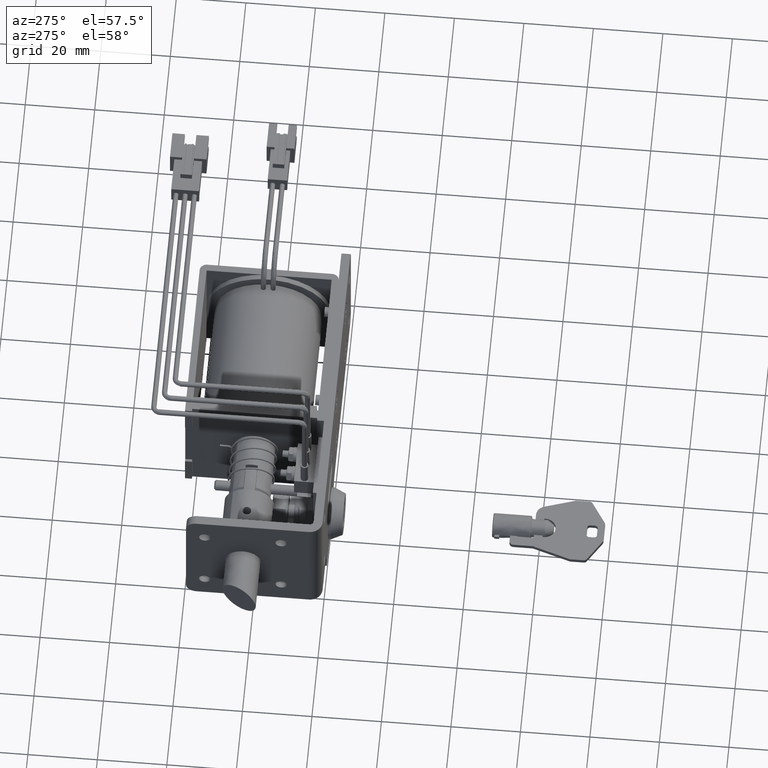
[diagram: clean part render]
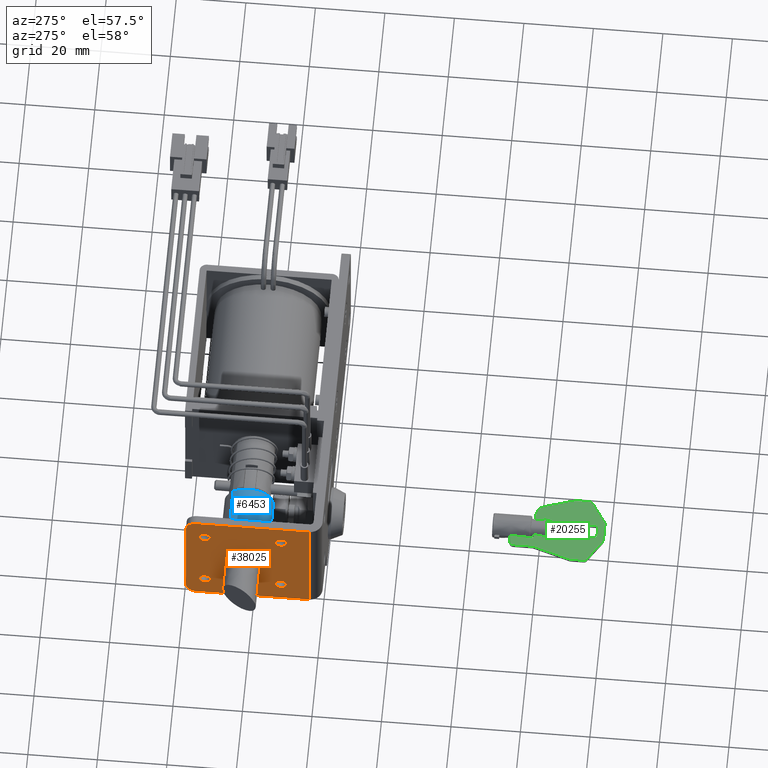
[diagram: same view with three faces highlighted in distinct colors, each labeled with its STEP entity id]
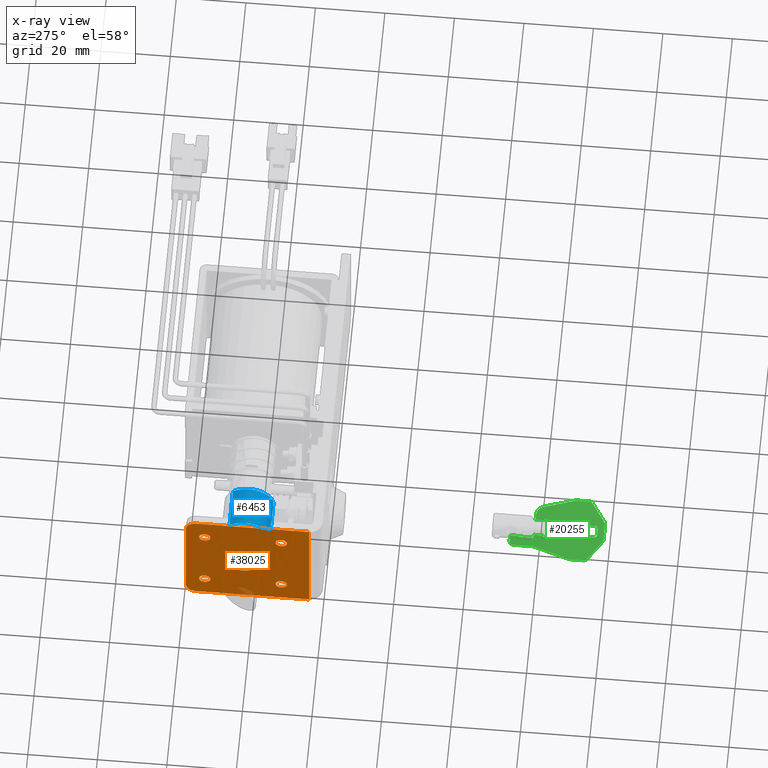
[diagram: x-ray of the same camera — body ghosted, the three highlighted faces saturated]
A machine part, auxiliary view with three faces highlighted in distinct colors.
The next image is the same camera in x-ray (body ghosted, the three faces saturated) — at least one of them is partly hidden behind the body in this view.
Their STEP definitions:

[orange] entity #38025 — the highlighted face is a freeform B-spline surface patch.
#35053=CARTESIAN_POINT('',(-28.500000000001400,13.246922417290889,5.100730091996343));
#35054=VERTEX_POINT('',#35053);
#35055=CARTESIAN_POINT('',(-28.500000000001400,11.600000000002240,3.350000000007300));
#35056=VERTEX_POINT('',#35055);
#35057=CARTESIAN_POINT('',(-28.500000000001414,13.246922417290889,5.100730091996343));
#35058=CARTESIAN_POINT('',(-28.500000000001403,13.250000000002244,5.050412060330698));
#35059=CARTESIAN_POINT('',(-28.500000000001400,13.250000000002240,5.000000000007300));
#35060=CARTESIAN_POINT('',(-28.500000000001403,13.250000000002238,3.350000000007300));
#35061=CARTESIAN_POINT('',(-28.500000000001400,11.600000000002240,3.350000000007300));
#35069=(BOUNDED_CURVE()B_SPLINE_CURVE(2,(#35057,#35058,#35059,#35060,#35061),.UNSPECIFIED.,.F.,.U.)B_SPLINE_CURVE_WITH_KNOTS((3,2,3),(0.239332962057938,0.250000000000000,0.500000000000000),.UNSPECIFIED.)CURVE()GEOMETRIC_REPRESENTATION_ITEM()RATIONAL_B_SPLINE_CURVE((0.976072041278790,0.987502787687777,1.0,0.707106781186548,1.0))REPRESENTATION_ITEM(''));
#35070=EDGE_CURVE('',#35054,#35056,#35069,.T.);
#35072=CARTESIAN_POINT('',(-28.500000000001400,9.953077582713590,4.899269908018257));
#35073=VERTEX_POINT('',#35072);
#35074=CARTESIAN_POINT('',(-28.500000000001400,11.600000000002240,3.350000000007300));
#35075=CARTESIAN_POINT('',(-28.500000000001403,10.047834991266400,3.350000000007299));
#35076=CARTESIAN_POINT('',(-28.500000000001414,9.953077582713592,4.899269908018257));
#35084=(BOUNDED_CURVE()B_SPLINE_CURVE(2,(#35074,#35075,#35076),.UNSPECIFIED.,.F.,.U.)B_SPLINE_CURVE_WITH_KNOTS((3,3),(0.500000000000000,0.739332962057938),.UNSPECIFIED.)CURVE()GEOMETRIC_REPRESENTATION_ITEM()RATIONAL_B_SPLINE_CURVE((1.0,0.719603993498771,0.976072041278790))REPRESENTATION_ITEM(''));
#35085=EDGE_CURVE('',#35056,#35073,#35084,.T.);
#35152=CARTESIAN_POINT('',(-28.500000000001400,11.600000000002240,6.650000000007299));
#35153=VERTEX_POINT('',#35152);
#35154=CARTESIAN_POINT('',(-28.500000000001400,11.600000000002240,6.650000000007299));
#35155=CARTESIAN_POINT('',(-28.500000000001403,13.152165008738075,6.650000000007299));
#35156=CARTESIAN_POINT('',(-28.500000000001414,13.246922417290889,5.100730091996343));
#35164=(BOUNDED_CURVE()B_SPLINE_CURVE(2,(#35154,#35155,#35156),.UNSPECIFIED.,.F.,.U.)B_SPLINE_CURVE_WITH_KNOTS((3,3),(0.0,0.239332962057938),.UNSPECIFIED.)CURVE()GEOMETRIC_REPRESENTATION_ITEM()RATIONAL_B_SPLINE_CURVE((1.0,0.719603993498771,0.976072041278790))REPRESENTATION_ITEM(''));
#35165=EDGE_CURVE('',#35153,#35054,#35164,.T.);
#35199=CARTESIAN_POINT('',(-28.500000000001414,9.953077582713592,4.899269908018257));
#35200=CARTESIAN_POINT('',(-28.500000000001403,9.950000000002239,4.949587939683902));
#35201=CARTESIAN_POINT('',(-28.500000000001400,9.950000000002238,5.000000000007300));
#35202=CARTESIAN_POINT('',(-28.500000000001403,9.950000000002238,6.650000000007299));
#35203=CARTESIAN_POINT('',(-28.500000000001400,11.600000000002240,6.650000000007299));
#35211=(BOUNDED_CURVE()B_SPLINE_CURVE(2,(#35199,#35200,#35201,#35202,#35203),.UNSPECIFIED.,.F.,.U.)B_SPLINE_CURVE_WITH_KNOTS((3,2,3),(0.739332962057938,0.750000000000000,1.0),.UNSPECIFIED.)CURVE()GEOMETRIC_REPRESENTATION_ITEM()RATIONAL_B_SPLINE_CURVE((0.976072041278790,0.987502787687777,1.0,0.707106781186548,1.0))REPRESENTATION_ITEM(''));
#35212=EDGE_CURVE('',#35073,#35153,#35211,.T.);
#35235=CARTESIAN_POINT('',(-28.500000000001400,13.246922417289070,27.100730091989039));
#35236=VERTEX_POINT('',#35235);
#35237=CARTESIAN_POINT('',(-28.500000000001400,11.600000000000421,25.350000000000001));
#35238=VERTEX_POINT('',#35237);
#35239=CARTESIAN_POINT('',(-28.500000000001410,13.246922417289063,27.100730091989039));
#35240=CARTESIAN_POINT('',(-28.500000000001400,13.250000000000419,27.050412060323396));
#35241=CARTESIAN_POINT('',(-28.500000000001400,13.250000000000419,27.0));
#35242=CARTESIAN_POINT('',(-28.500000000001403,13.250000000000417,25.350000000000001));
#35243=CARTESIAN_POINT('',(-28.500000000001400,11.600000000000421,25.350000000000001));
#35251=(BOUNDED_CURVE()B_SPLINE_CURVE(2,(#35239,#35240,#35241,#35242,#35243),.UNSPECIFIED.,.F.,.U.)B_SPLINE_CURVE_WITH_KNOTS((3,2,3),(0.239332962057938,0.250000000000000,0.500000000000000),.UNSPECIFIED.)CURVE()GEOMETRIC_REPRESENTATION_ITEM()RATIONAL_B_SPLINE_CURVE((0.976072041278790,0.987502787687777,1.0,0.707106781186548,1.0))REPRESENTATION_ITEM(''));
#35252=EDGE_CURVE('',#35236,#35238,#35251,.T.);
#35254=CARTESIAN_POINT('',(-28.500000000001400,9.953077582711773,26.899269908010961));
#35255=VERTEX_POINT('',#35254);
#35256=CARTESIAN_POINT('',(-28.500000000001400,11.600000000000421,25.350000000000001));
#35257=CARTESIAN_POINT('',(-28.500000000001410,10.047834991264581,25.349999999999991));
#35258=CARTESIAN_POINT('',(-28.500000000001396,9.953077582711773,26.899269908010961));
#35266=(BOUNDED_CURVE()B_SPLINE_CURVE(2,(#35256,#35257,#35258),.UNSPECIFIED.,.F.,.U.)B_SPLINE_CURVE_WITH_KNOTS((3,3),(0.500000000000000,0.739332962057938),.UNSPECIFIED.)CURVE()GEOMETRIC_REPRESENTATION_ITEM()RATIONAL_B_SPLINE_CURVE((1.0,0.719603993498771,0.976072041278790))REPRESENTATION_ITEM(''));
#35267=EDGE_CURVE('',#35238,#35255,#35266,.T.);
#35334=CARTESIAN_POINT('',(-28.500000000001400,11.600000000000421,28.649999999999999));
#35335=VERTEX_POINT('',#35334);
#35336=CARTESIAN_POINT('',(-28.500000000001400,11.600000000000421,28.649999999999999));
#35337=CARTESIAN_POINT('',(-28.500000000001407,13.152165008736258,28.649999999999991));
#35338=CARTESIAN_POINT('',(-28.500000000001410,13.246922417289067,27.100730091989043));
#35346=(BOUNDED_CURVE()B_SPLINE_CURVE(2,(#35336,#35337,#35338),.UNSPECIFIED.,.F.,.U.)B_SPLINE_CURVE_WITH_KNOTS((3,3),(0.0,0.239332962057938),.UNSPECIFIED.)CURVE()GEOMETRIC_REPRESENTATION_ITEM()RATIONAL_B_SPLINE_CURVE((1.0,0.719603993498770,0.976072041278791))REPRESENTATION_ITEM(''));
#35347=EDGE_CURVE('',#35335,#35236,#35346,.T.);
#35381=CARTESIAN_POINT('',(-28.500000000001396,9.953077582711773,26.899269908010961));
#35382=CARTESIAN_POINT('',(-28.500000000001407,9.950000000000419,26.949587939676608));
#35383=CARTESIAN_POINT('',(-28.500000000001400,9.950000000000419,27.0));
#35384=CARTESIAN_POINT('',(-28.500000000001403,9.950000000000419,28.649999999999988));
#35385=CARTESIAN_POINT('',(-28.500000000001400,11.600000000000421,28.649999999999999));
#35393=(BOUNDED_CURVE()B_SPLINE_CURVE(2,(#35381,#35382,#35383,#35384,#35385),.UNSPECIFIED.,.F.,.U.)B_SPLINE_CURVE_WITH_KNOTS((3,2,3),(0.739332962057938,0.750000000000000,1.0),.UNSPECIFIED.)CURVE()GEOMETRIC_REPRESENTATION_ITEM()RATIONAL_B_SPLINE_CURVE((0.976072041278790,0.987502787687777,1.0,0.707106781186548,1.0))REPRESENTATION_ITEM(''));
#35394=EDGE_CURVE('',#35255,#35335,#35393,.T.);
#35417=CARTESIAN_POINT('',(-28.500000000001400,35.246922417289042,5.100730091989043));
#35418=VERTEX_POINT('',#35417);
#35419=CARTESIAN_POINT('',(-28.500000000001400,33.600000000000399,3.350000000000000));
#35420=VERTEX_POINT('',#35419);
#35421=CARTESIAN_POINT('',(-28.500000000001410,35.246922417289049,5.100730091989044));
#35422=CARTESIAN_POINT('',(-28.500000000001400,35.250000000000391,5.050412060323399));
#35423=CARTESIAN_POINT('',(-28.500000000001400,35.250000000000398,5.0));
#35424=CARTESIAN_POINT('',(-28.500000000001403,35.250000000000391,3.350000000000000));
#35425=CARTESIAN_POINT('',(-28.500000000001400,33.600000000000399,3.350000000000000));
#35433=(BOUNDED_CURVE()B_SPLINE_CURVE(2,(#35421,#35422,#35423,#35424,#35425),.UNSPECIFIED.,.F.,.U.)B_SPLINE_CURVE_WITH_KNOTS((3,2,3),(0.239332962057938,0.250000000000000,0.500000000000000),.UNSPECIFIED.)CURVE()GEOMETRIC_REPRESENTATION_ITEM()RATIONAL_B_SPLINE_CURVE((0.976072041278790,0.987502787687777,1.0,0.707106781186548,1.0))REPRESENTATION_ITEM(''));
#35434=EDGE_CURVE('',#35418,#35420,#35433,.T.);
#35436=CARTESIAN_POINT('',(-28.500000000001400,31.953077582711760,4.899269908010957));
#35437=VERTEX_POINT('',#35436);
#35438=CARTESIAN_POINT('',(-28.500000000001400,33.600000000000399,3.350000000000000));
#35439=CARTESIAN_POINT('',(-28.500000000001403,32.047834991264565,3.349999999999999));
#35440=CARTESIAN_POINT('',(-28.500000000001414,31.953077582711764,4.899269908010957));
#35448=(BOUNDED_CURVE()B_SPLINE_CURVE(2,(#35438,#35439,#35440),.UNSPECIFIED.,.F.,.U.)B_SPLINE_CURVE_WITH_KNOTS((3,3),(0.500000000000000,0.739332962057938),.UNSPECIFIED.)CURVE()GEOMETRIC_REPRESENTATION_ITEM()RATIONAL_B_SPLINE_CURVE((1.0,0.719603993498771,0.976072041278790))REPRESENTATION_ITEM(''));
#35449=EDGE_CURVE('',#35420,#35437,#35448,.T.);
#35516=CARTESIAN_POINT('',(-28.500000000001400,33.600000000000399,6.650000000000000));
#35517=VERTEX_POINT('',#35516);
#35518=CARTESIAN_POINT('',(-28.500000000001400,33.600000000000399,6.650000000000000));
#35519=CARTESIAN_POINT('',(-28.500000000001407,35.152165008736240,6.649999999999999));
#35520=CARTESIAN_POINT('',(-28.500000000001410,35.246922417289056,5.100730091989043));
#35528=(BOUNDED_CURVE()B_SPLINE_CURVE(2,(#35518,#35519,#35520),.UNSPECIFIED.,.F.,.U.)B_SPLINE_CURVE_WITH_KNOTS((3,3),(0.0,0.239332962057938),.UNSPECIFIED.)CURVE()GEOMETRIC_REPRESENTATION_ITEM()RATIONAL_B_SPLINE_CURVE((1.0,0.719603993498770,0.976072041278790))REPRESENTATION_ITEM(''));
#35529=EDGE_CURVE('',#35517,#35418,#35528,.T.);
#35563=CARTESIAN_POINT('',(-28.500000000001414,31.953077582711764,4.899269908010957));
#35564=CARTESIAN_POINT('',(-28.500000000001403,31.950000000000401,4.949587939676601));
#35565=CARTESIAN_POINT('',(-28.500000000001400,31.950000000000401,5.0));
#35566=CARTESIAN_POINT('',(-28.500000000001403,31.950000000000404,6.649999999999999));
#35567=CARTESIAN_POINT('',(-28.500000000001400,33.600000000000399,6.650000000000000));
#35575=(BOUNDED_CURVE()B_SPLINE_CURVE(2,(#35563,#35564,#35565,#35566,#35567),.UNSPECIFIED.,.F.,.U.)B_SPLINE_CURVE_WITH_KNOTS((3,2,3),(0.739332962057938,0.750000000000000,1.0),.UNSPECIFIED.)CURVE()GEOMETRIC_REPRESENTATION_ITEM()RATIONAL_B_SPLINE_CURVE((0.976072041278790,0.987502787687777,1.0,0.707106781186548,1.0))REPRESENTATION_ITEM(''));
#35576=EDGE_CURVE('',#35437,#35517,#35575,.T.);
#35600=CARTESIAN_POINT('',(-28.500000000001400,18.500328793608389,12.966405432578540));
#35601=VERTEX_POINT('',#35600);
#35607=CARTESIAN_POINT('',(-28.500000000001400,22.599999999999500,21.099999999999099));
#35608=VERTEX_POINT('',#35607);
#35609=CARTESIAN_POINT('',(-28.500000000001407,18.500328793608389,12.966405432578544));
#35610=CARTESIAN_POINT('',(-28.500000000001407,17.499999999999503,14.318273344040199));
#35611=CARTESIAN_POINT('',(-28.500000000001400,17.499999999999499,15.999999999999099));
#35612=CARTESIAN_POINT('',(-28.500000000001403,17.499999999999503,21.099999999999103));
#35613=CARTESIAN_POINT('',(-28.500000000001400,22.599999999999500,21.099999999999099));
#35621=(BOUNDED_CURVE()B_SPLINE_CURVE(2,(#35609,#35610,#35611,#35612,#35613),.UNSPECIFIED.,.F.,.U.)B_SPLINE_CURVE_WITH_KNOTS((3,2,3),(0.647425943168841,0.750000000000000,1.0),.UNSPECIFIED.)CURVE()GEOMETRIC_REPRESENTATION_ITEM()RATIONAL_B_SPLINE_CURVE((0.858267077470319,0.879827017311871,1.0,0.707106781186548,1.0))REPRESENTATION_ITEM(''));
#35622=EDGE_CURVE('',#35601,#35608,#35621,.T.);
#35624=CARTESIAN_POINT('',(-28.500000000001670,26.699671189019352,19.033594590895600));
#35625=VERTEX_POINT('',#35624);
#35626=CARTESIAN_POINT('',(-28.500000000001400,22.599999999999500,21.099999999999099));
#35627=CARTESIAN_POINT('',(-28.500000000001403,25.170612885894236,21.099999999999092));
#35628=CARTESIAN_POINT('',(-28.500000000001403,26.699671189019671,19.033594590895831));
#35636=(BOUNDED_CURVE()B_SPLINE_CURVE(2,(#35626,#35627,#35628),.UNSPECIFIED.,.F.,.U.)B_SPLINE_CURVE_WITH_KNOTS((3,3),(0.0,0.147425942300038),.UNSPECIFIED.)CURVE()GEOMETRIC_REPRESENTATION_ITEM()RATIONAL_B_SPLINE_CURVE((1.0,0.827279764892543,0.858267077105093))REPRESENTATION_ITEM(''));
#35637=EDGE_CURVE('',#35608,#35625,#35636,.T.);
#35724=CARTESIAN_POINT('',(-28.500000000001400,22.599999999999500,10.899999999999100));
#35725=VERTEX_POINT('',#35724);
#35726=CARTESIAN_POINT('',(-28.500000000001673,26.699671189019345,19.033594590895607));
#35727=CARTESIAN_POINT('',(-28.500000000001407,27.699999999999491,17.681726672147818));
#35728=CARTESIAN_POINT('',(-28.500000000001400,27.699999999999498,15.999999999999099));
#35729=CARTESIAN_POINT('',(-28.500000000001403,27.699999999999495,10.899999999999098));
#35730=CARTESIAN_POINT('',(-28.500000000001400,22.599999999999500,10.899999999999100));
#35738=(BOUNDED_CURVE()B_SPLINE_CURVE(2,(#35726,#35727,#35728,#35729,#35730),.UNSPECIFIED.,.F.,.U.)B_SPLINE_CURVE_WITH_KNOTS((3,2,3),(0.147425942300038,0.250000000000000,0.500000000000000),.UNSPECIFIED.)CURVE()GEOMETRIC_REPRESENTATION_ITEM()RATIONAL_B_SPLINE_CURVE((0.858267077105093,0.879827016294005,1.0,0.707106781186548,1.0))REPRESENTATION_ITEM(''));
#35739=EDGE_CURVE('',#35625,#35725,#35738,.T.);
#35741=CARTESIAN_POINT('',(-28.500000000001400,22.599999999999500,10.899999999999100));
#35742=CARTESIAN_POINT('',(-28.500000000001407,20.029387095792934,10.899999999999100));
#35743=CARTESIAN_POINT('',(-28.500000000001393,18.500328793608062,12.966405432578298));
#35751=(BOUNDED_CURVE()B_SPLINE_CURVE(2,(#35741,#35742,#35743),.UNSPECIFIED.,.F.,.U.)B_SPLINE_CURVE_WITH_KNOTS((3,3),(0.500000000000000,0.647425943168841),.UNSPECIFIED.)CURVE()GEOMETRIC_REPRESENTATION_ITEM()RATIONAL_B_SPLINE_CURVE((1.0,0.827279763874676,0.858267077470319))REPRESENTATION_ITEM(''));
#35752=EDGE_CURVE('',#35725,#35601,#35751,.T.);
#35776=CARTESIAN_POINT('',(-28.500000000001400,35.246922417289042,27.100730091989039));
#35777=VERTEX_POINT('',#35776);
#35778=CARTESIAN_POINT('',(-28.500000000001400,33.600000000000399,25.350000000000001));
#35779=VERTEX_POINT('',#35778);
#35780=CARTESIAN_POINT('',(-28.500000000001410,35.246922417289035,27.100730091989043));
#35781=CARTESIAN_POINT('',(-28.500000000001410,35.250000000000398,27.050412060323399));
#35782=CARTESIAN_POINT('',(-28.500000000001400,35.250000000000398,27.0));
#35783=CARTESIAN_POINT('',(-28.500000000001403,35.250000000000391,25.350000000000001));
#35784=CARTESIAN_POINT('',(-28.500000000001400,33.600000000000399,25.350000000000001));
#35792=(BOUNDED_CURVE()B_SPLINE_CURVE(2,(#35780,#35781,#35782,#35783,#35784),.UNSPECIFIED.,.F.,.U.)B_SPLINE_CURVE_WITH_KNOTS((3,2,3),(0.239332962057938,0.250000000000000,0.500000000000000),.UNSPECIFIED.)CURVE()GEOMETRIC_REPRESENTATION_ITEM()RATIONAL_B_SPLINE_CURVE((0.976072041278791,0.987502787687777,1.0,0.707106781186548,1.0))REPRESENTATION_ITEM(''));
#35793=EDGE_CURVE('',#35777,#35779,#35792,.T.);
#35795=CARTESIAN_POINT('',(-28.500000000001400,31.953077582711760,26.899269908010961));
#35796=VERTEX_POINT('',#35795);
#35797=CARTESIAN_POINT('',(-28.500000000001400,33.600000000000399,25.350000000000001));
#35798=CARTESIAN_POINT('',(-28.500000000001410,32.047834991264558,25.349999999999991));
#35799=CARTESIAN_POINT('',(-28.500000000001396,31.953077582711757,26.899269908010961));
#35807=(BOUNDED_CURVE()B_SPLINE_CURVE(2,(#35797,#35798,#35799),.UNSPECIFIED.,.F.,.U.)B_SPLINE_CURVE_WITH_KNOTS((3,3),(0.500000000000000,0.739332962057938),.UNSPECIFIED.)CURVE()GEOMETRIC_REPRESENTATION_ITEM()RATIONAL_B_SPLINE_CURVE((1.0,0.719603993498771,0.976072041278790))REPRESENTATION_ITEM(''));
#35808=EDGE_CURVE('',#35779,#35796,#35807,.T.);
#35875=CARTESIAN_POINT('',(-28.500000000001400,33.600000000000399,28.649999999999999));
#35876=VERTEX_POINT('',#35875);
#35877=CARTESIAN_POINT('',(-28.500000000001400,33.600000000000399,28.649999999999999));
#35878=CARTESIAN_POINT('',(-28.500000000001414,35.152165008736233,28.649999999999991));
#35879=CARTESIAN_POINT('',(-28.500000000001403,35.246922417289035,27.100730091989043));
#35887=(BOUNDED_CURVE()B_SPLINE_CURVE(2,(#35877,#35878,#35879),.UNSPECIFIED.,.F.,.U.)B_SPLINE_CURVE_WITH_KNOTS((3,3),(0.0,0.239332962057938),.UNSPECIFIED.)CURVE()GEOMETRIC_REPRESENTATION_ITEM()RATIONAL_B_SPLINE_CURVE((1.0,0.719603993498771,0.976072041278790))REPRESENTATION_ITEM(''));
#35888=EDGE_CURVE('',#35876,#35777,#35887,.T.);
#35922=CARTESIAN_POINT('',(-28.500000000001396,31.953077582711757,26.899269908010961));
#35923=CARTESIAN_POINT('',(-28.500000000001407,31.950000000000404,26.949587939676608));
#35924=CARTESIAN_POINT('',(-28.500000000001400,31.950000000000401,27.0));
#35925=CARTESIAN_POINT('',(-28.500000000001403,31.950000000000404,28.649999999999988));
#35926=CARTESIAN_POINT('',(-28.500000000001400,33.600000000000399,28.649999999999999));
#35934=(BOUNDED_CURVE()B_SPLINE_CURVE(2,(#35922,#35923,#35924,#35925,#35926),.UNSPECIFIED.,.F.,.U.)B_SPLINE_CURVE_WITH_KNOTS((3,2,3),(0.739332962057938,0.750000000000000,1.0),.UNSPECIFIED.)CURVE()GEOMETRIC_REPRESENTATION_ITEM()RATIONAL_B_SPLINE_CURVE((0.976072041278790,0.987502787687777,1.0,0.707106781186548,1.0))REPRESENTATION_ITEM(''));
#35935=EDGE_CURVE('',#35796,#35876,#35934,.T.);
#37690=CARTESIAN_POINT('',(-28.500000000000000,3.600000000000050,-2.0));
#37691=VERTEX_POINT('',#37690);
#37706=CARTESIAN_POINT('',(-28.500000000000000,3.600000000000050,34.0));
#37707=VERTEX_POINT('',#37706);
#37721=CARTESIAN_POINT('',(-28.500000000000000,3.600000000000050,-2.0));
#37722=CARTESIAN_POINT('',(-28.500000000000000,3.600000000000050,34.0));
#37723=QUASI_UNIFORM_CURVE('',1,(#37721,#37722),.UNSPECIFIED.,.F.,.U.);
#37724=EDGE_CURVE('',#37691,#37707,#37723,.T.);
#37813=CARTESIAN_POINT('',(-28.500000000001400,39.0,31.0));
#37814=VERTEX_POINT('',#37813);
#37820=CARTESIAN_POINT('',(-28.500000000000000,36.0,34.0));
#37821=VERTEX_POINT('',#37820);
#37822=CARTESIAN_POINT('',(-28.500000000000000,36.0,34.0));
#37823=CARTESIAN_POINT('',(-28.500000000000007,39.000000000000007,34.000000000000007));
#37824=CARTESIAN_POINT('',(-28.500000000000000,39.0,31.0));
#37832=(BOUNDED_CURVE()B_SPLINE_CURVE(2,(#37822,#37823,#37824),.UNSPECIFIED.,.F.,.U.)CURVE()GEOMETRIC_REPRESENTATION_ITEM()QUASI_UNIFORM_CURVE()RATIONAL_B_SPLINE_CURVE((1.0,0.707106781186548,1.0))REPRESENTATION_ITEM(''));
#37833=EDGE_CURVE('',#37821,#37814,#37832,.T.);
#37899=CARTESIAN_POINT('',(-28.500000000000000,36.0,-2.0));
#37900=VERTEX_POINT('',#37899);
#37906=CARTESIAN_POINT('',(-28.500000000001400,39.0,1.0));
#37907=VERTEX_POINT('',#37906);
#37908=CARTESIAN_POINT('',(-28.500000000001400,39.0,1.0));
#37909=CARTESIAN_POINT('',(-28.500000000000007,39.000000000000007,-2.000000000000000));
#37910=CARTESIAN_POINT('',(-28.500000000000000,36.0,-2.0));
#37918=(BOUNDED_CURVE()B_SPLINE_CURVE(2,(#37908,#37909,#37910),.UNSPECIFIED.,.F.,.U.)CURVE()GEOMETRIC_REPRESENTATION_ITEM()QUASI_UNIFORM_CURVE()RATIONAL_B_SPLINE_CURVE((1.0,0.707106781186548,1.0))REPRESENTATION_ITEM(''));
#37919=EDGE_CURVE('',#37907,#37900,#37918,.T.);
#37965=CARTESIAN_POINT('',(-28.500000000001400,39.0,1.0));
#37966=CARTESIAN_POINT('',(-28.500000000001400,39.0,31.0));
#37967=QUASI_UNIFORM_CURVE('',1,(#37965,#37966),.UNSPECIFIED.,.F.,.U.);
#37968=EDGE_CURVE('',#37907,#37814,#37967,.T.);
#37974=CARTESIAN_POINT('',(-28.500000000000000,1.831770068612118,35.798199930225010));
#37975=CARTESIAN_POINT('',(-28.500000000000000,1.831770068612118,-3.798200895820258));
#37976=CARTESIAN_POINT('',(-28.500000000000000,40.768230880889917,35.798199930225010));
#37977=CARTESIAN_POINT('',(-28.500000000000000,40.768230880889917,-3.798200895820258));
#37978=B_SPLINE_SURFACE_WITH_KNOTS('',1,1,((#37974,#37976),(#37975,#37977)),.UNSPECIFIED.,.F.,.F.,.U.,(2,2),(2,2),(0.0,39.596400826045269),(0.0,38.936460812277801),.UNSPECIFIED.);
#37979=CARTESIAN_POINT('',(-28.500000000000000,36.0,-2.0));
#37980=CARTESIAN_POINT('',(-28.500000000000000,3.600000000000050,-2.0));
#37981=QUASI_UNIFORM_CURVE('',1,(#37979,#37980),.UNSPECIFIED.,.F.,.U.);
#37982=EDGE_CURVE('',#37900,#37691,#37981,.T.);
#37983=ORIENTED_EDGE('',*,*,#37982,.T.);
#37984=ORIENTED_EDGE('',*,*,#37724,.T.);
#37985=CARTESIAN_POINT('',(-28.500000000000000,36.0,34.0));
#37986=CARTESIAN_POINT('',(-28.500000000000000,3.600000000000050,34.0));
#37987=QUASI_UNIFORM_CURVE('',1,(#37985,#37986),.UNSPECIFIED.,.F.,.U.);
#37988=EDGE_CURVE('',#37821,#37707,#37987,.T.);
#37989=ORIENTED_EDGE('',*,*,#37988,.F.);
#37990=ORIENTED_EDGE('',*,*,#37833,.T.);
#37991=ORIENTED_EDGE('',*,*,#37968,.F.);
#37992=ORIENTED_EDGE('',*,*,#37919,.T.);
#37993=EDGE_LOOP('',(#37983,#37984,#37989,#37990,#37991,#37992));
#37994=FACE_OUTER_BOUND('',#37993,.T.);
#37995=ORIENTED_EDGE('',*,*,#35808,.F.);
#37996=ORIENTED_EDGE('',*,*,#35793,.F.);
#37997=ORIENTED_EDGE('',*,*,#35888,.F.);
#37998=ORIENTED_EDGE('',*,*,#35935,.F.);
#37999=EDGE_LOOP('',(#37995,#37996,#37997,#37998));
#38000=FACE_BOUND('',#37999,.T.);
#38001=ORIENTED_EDGE('',*,*,#35637,.F.);
#38002=ORIENTED_EDGE('',*,*,#35622,.F.);
#38003=ORIENTED_EDGE('',*,*,#35752,.F.);
#38004=ORIENTED_EDGE('',*,*,#35739,.F.);
#38005=EDGE_LOOP('',(#38001,#38002,#38003,#38004));
#38006=FACE_BOUND('',#38005,.T.);
#38007=ORIENTED_EDGE('',*,*,#35449,.F.);
#38008=ORIENTED_EDGE('',*,*,#35434,.F.);
#38009=ORIENTED_EDGE('',*,*,#35529,.F.);
#38010=ORIENTED_EDGE('',*,*,#35576,.F.);
#38011=EDGE_LOOP('',(#38007,#38008,#38009,#38010));
#38012=FACE_BOUND('',#38011,.T.);
#38013=ORIENTED_EDGE('',*,*,#35267,.F.);
#38014=ORIENTED_EDGE('',*,*,#35252,.F.);
#38015=ORIENTED_EDGE('',*,*,#35347,.F.);
#38016=ORIENTED_EDGE('',*,*,#35394,.F.);
#38017=EDGE_LOOP('',(#38013,#38014,#38015,#38016));
#38018=FACE_BOUND('',#38017,.T.);
#38019=ORIENTED_EDGE('',*,*,#35085,.F.);
#38020=ORIENTED_EDGE('',*,*,#35070,.F.);
#38021=ORIENTED_EDGE('',*,*,#35165,.F.);
#38022=ORIENTED_EDGE('',*,*,#35212,.F.);
#38023=EDGE_LOOP('',(#38019,#38020,#38021,#38022));
#38024=FACE_BOUND('',#38023,.T.);
#38025=ADVANCED_FACE('',(#37994,#38000,#38006,#38012,#38018,#38024),#37978,.F.);

[blue] entity #6453 — the highlighted face is a freeform B-spline surface patch.
#5358=CARTESIAN_POINT('',(-8.499999999999755,17.961663952520080,10.757306158983759));
#5359=VERTEX_POINT('',#5358);
#5360=CARTESIAN_POINT('',(-8.499999999999600,22.600000000000001,22.999999999998650));
#5361=VERTEX_POINT('',#5360);
#5362=CARTESIAN_POINT('',(-8.499999999999755,17.961663952520073,10.757306158983756));
#5363=CARTESIAN_POINT('',(-8.499999999999741,15.600000000001423,12.846726478992236));
#5364=CARTESIAN_POINT('',(-8.499999999999707,15.600000000001071,15.999999999999860));
#5365=CARTESIAN_POINT('',(-8.499999999999632,15.600000000000298,22.999999999998980));
#5366=CARTESIAN_POINT('',(-8.499999999999600,22.600000000000001,22.999999999998650));
#5374=(BOUNDED_CURVE()B_SPLINE_CURVE(2,(#5362,#5363,#5364,#5365,#5366),.UNSPECIFIED.,.F.,.U.)B_SPLINE_CURVE_WITH_KNOTS((3,2,3),(0.615779764474283,0.750000000000000,1.0),.UNSPECIFIED.)CURVE()GEOMETRIC_REPRESENTATION_ITEM()RATIONAL_B_SPLINE_CURVE((0.854350179584675,0.842751212747892,1.0,0.707106781186547,1.0))REPRESENTATION_ITEM(''));
#5375=EDGE_CURVE('',#5359,#5361,#5374,.T.);
#5392=CARTESIAN_POINT('',(-8.499999999999757,27.238336047479919,21.242693841013541));
#5393=VERTEX_POINT('',#5392);
#5409=CARTESIAN_POINT('',(-8.499999999999600,22.600000000000001,22.999999999998650));
#5410=CARTESIAN_POINT('',(-8.499999999999680,25.252059485763031,22.999999999997776));
#5411=CARTESIAN_POINT('',(-8.499999999999757,27.238336047479923,21.242693841013541));
#5419=(BOUNDED_CURVE()B_SPLINE_CURVE(2,(#5409,#5410,#5411),.UNSPECIFIED.,.F.,.U.)B_SPLINE_CURVE_WITH_KNOTS((3,3),(0.0,0.115779764474283),.UNSPECIFIED.)CURVE()GEOMETRIC_REPRESENTATION_ITEM()RATIONAL_B_SPLINE_CURVE((1.0,0.864355568438656,0.854350179584675))REPRESENTATION_ITEM(''));
#5420=EDGE_CURVE('',#5361,#5393,#5419,.T.);
#5678=CARTESIAN_POINT('',(-14.971723449471501,15.662886402356261,15.063806094038339));
#5679=VERTEX_POINT('',#5678);
#5685=CARTESIAN_POINT('',(-15.799503567931490,15.712511325131290,17.249999901420729));
#5686=VERTEX_POINT('',#5685);
#5687=CARTESIAN_POINT('',(-14.971723449471501,15.662886402356261,15.063806094038339));
#5688=CARTESIAN_POINT('',(-14.952571054250811,15.660599700125029,15.080750236249960));
#5689=CARTESIAN_POINT('',(-14.934005454124920,15.658304760737760,15.098224064156440));
#5690=CARTESIAN_POINT('',(-14.858494841095380,15.648692092579200,15.173752059856669));
#5691=CARTESIAN_POINT('',(-14.806811237070299,15.641416307257360,15.236569348110841));
#5692=CARTESIAN_POINT('',(-14.738270529327560,15.631193533679321,15.339002733887639));
#5693=CARTESIAN_POINT('',(-14.717044674413250,15.627917468528359,15.374400359176651));
#5694=CARTESIAN_POINT('',(-14.678516517743381,15.621829200806539,15.446427973270611));
#5695=CARTESIAN_POINT('',(-14.643674149921861,15.616169304316470,15.520032139823581));
#5696=CARTESIAN_POINT('',(-14.616118358292111,15.611513621924351,15.596763802150489));
#5697=CARTESIAN_POINT('',(-14.592270836374050,15.607434253039390,15.675091560884090));
#5698=CARTESIAN_POINT('',(-14.582160882921750,15.605675634211190,15.715288667523319));
#5699=CARTESIAN_POINT('',(-14.558027925795219,15.601446758623300,15.836359304345899));
#5700=CARTESIAN_POINT('',(-14.550047828795400,15.600008284823771,15.917572470361261));
#5701=CARTESIAN_POINT('',(-14.549976716581339,15.599995603566480,16.040126334314291));
#5702=CARTESIAN_POINT('',(-14.551950384063881,15.600348914758101,16.081100824256961));
#5703=CARTESIAN_POINT('',(-14.560025423278830,15.601784209560360,16.163304302075900));
#5704=CARTESIAN_POINT('',(-14.566097392556420,15.602860816108530,16.204099612645940));
#5705=CARTESIAN_POINT('',(-14.590068046773469,15.607061380904501,16.324430388603080));
#5706=CARTESIAN_POINT('',(-14.613713716110110,15.611164598731060,16.402430664594831));
#5707=CARTESIAN_POINT('',(-14.660775304931340,15.618947369856690,16.516089503341689));
#5708=CARTESIAN_POINT('',(-14.678501245237831,15.621827059820911,16.553550590661231));
#5709=CARTESIAN_POINT('',(-14.717147424661860,15.627933760681000,16.625785948586170));
#5710=CARTESIAN_POINT('',(-14.759100602340380,15.634407428173249,16.695687727331549));
#5711=CARTESIAN_POINT('',(-14.807534185886951,15.641420070982189,16.761034807183300));
#5712=CARTESIAN_POINT('',(-14.859238224552421,15.648605982600030,16.824093246158871));
#5713=CARTESIAN_POINT('',(-14.886819535854331,15.652297613746390,16.854571657520641));
#5714=CARTESIAN_POINT('',(-14.974037257137390,15.663402162652201,16.941833700964199));
#5715=CARTESIAN_POINT('',(-15.036972728127781,15.670700724233670,16.993431909280272));
#5716=CARTESIAN_POINT('',(-15.138367466711090,15.680886789770961,17.061318434706489));
#5717=CARTESIAN_POINT('',(-15.173339594834941,15.684155555693980,17.082350221354972));
#5718=CARTESIAN_POINT('',(-15.245704540791740,15.690336879124979,17.121134162722282));
#5719=CARTESIAN_POINT('',(-15.283105423524040,15.693245361582321,17.138856316728511));
#5720=CARTESIAN_POINT('',(-15.396463764254470,15.701111813220839,17.185897641328580));
#5721=CARTESIAN_POINT('',(-15.474373118932821,15.705284665066220,17.209614437827181));
#5722=CARTESIAN_POINT('',(-15.594764015623440,15.709570871913391,17.233715199652689));
#5723=CARTESIAN_POINT('',(-15.635698214013480,15.710674002234200,17.239840516714668));
#5724=CARTESIAN_POINT('',(-15.717747817571579,15.712142351855780,17.247972016002230));
#5725=CARTESIAN_POINT('',(-15.758673742826240,15.712508380369920,17.249983687911730));
#5726=CARTESIAN_POINT('',(-15.799503567931490,15.712511325131290,17.249999901420729));
#5727=B_SPLINE_CURVE_WITH_KNOTS('',3,(#5687,#5688,#5689,#5690,#5691,#5692,#5693,#5694,#5695,#5696,#5697,#5698,#5699,#5700,#5701,#5702,#5703,#5704,#5705,#5706,#5707,#5708,#5709,#5710,#5711,#5712,#5713,#5714,#5715,#5716,#5717,#5718,#5719,#5720,#5721,#5722,#5723,#5724,#5725,#5726),.UNSPECIFIED.,.F.,.U.,(4,2,2,2,1,2,2,2,2,2,2,2,1,2,2,2,2,2,2,2,4),(0.115226034232152,0.124999999999992,0.156249999999989,0.171874999999988,0.187499999999987,0.203124999999985,0.218749999999984,0.249999999999981,0.265624999999981,0.281249999999980,0.312499999999980,0.328124999999980,0.343749999999979,0.359374999999979,0.374999999999979,0.406249999999979,0.421874999999979,0.437499999999979,0.468749999999979,0.484374999999979,0.499999999999979),.UNSPECIFIED.);
#5728=EDGE_CURVE('',#5679,#5686,#5727,.T.);
#5730=CARTESIAN_POINT('',(-16.628277603529959,15.662884701529450,16.936199571381412));
#5731=VERTEX_POINT('',#5730);
#5732=CARTESIAN_POINT('',(-15.799503567931490,15.712511325131290,17.249999901420729));
#5733=CARTESIAN_POINT('',(-15.881162902672621,15.712517008702900,17.250031998769519));
#5734=CARTESIAN_POINT('',(-15.962440506494501,15.711069859823340,17.242139822658249));
#5735=CARTESIAN_POINT('',(-16.083768334086670,15.706785823836659,17.218060737578931));
#5736=CARTESIAN_POINT('',(-16.123850708792300,15.705011650332500,17.208010444284739));
#5737=CARTESIAN_POINT('',(-16.202123795323519,15.700891935256641,17.184256604035799));
#5738=CARTESIAN_POINT('',(-16.278872740338048,15.696188534113469,17.156780166662429));
#5739=CARTESIAN_POINT('',(-16.352621002541230,15.690469015084361,17.121952736146589));
#5740=CARTESIAN_POINT('',(-16.424849329555570,15.684317176433311,17.083388149113279));
#5741=CARTESIAN_POINT('',(-16.460367170197909,15.681006933430410,17.062112710615249));
#5742=CARTESIAN_POINT('',(-16.541565710593900,15.672861058448261,17.007860126883589));
#5743=CARTESIAN_POINT('',(-16.586168352695740,15.667913488912710,16.973466988007679));
#5744=CARTESIAN_POINT('',(-16.628277603529959,15.662884701529450,16.936199571381412));
#5745=B_SPLINE_CURVE_WITH_KNOTS('',3,(#5732,#5733,#5734,#5735,#5736,#5737,#5738,#5739,#5740,#5741,#5742,#5743,#5744),.UNSPECIFIED.,.F.,.U.,(4,2,2,1,2,2,4),(0.499999999999979,0.531249999999980,0.546874999999979,0.562499999999979,0.578124999999979,0.593749999999979,0.615370405324313),.UNSPECIFIED.);
#5746=EDGE_CURVE('',#5686,#5731,#5745,.T.);
#5822=CARTESIAN_POINT('',(-15.800000000000001,15.712511343021999,14.749999999998639));
#5823=VERTEX_POINT('',#5822);
#5824=CARTESIAN_POINT('',(-16.628277603529959,15.662884701529450,16.936199571381412));
#5825=CARTESIAN_POINT('',(-16.647032915606879,15.660644982008360,16.919601012205661));
#5826=CARTESIAN_POINT('',(-16.665293599622132,15.658389150869130,16.902432266368319));
#5827=CARTESIAN_POINT('',(-16.740728579387849,15.648795974108410,16.827136645252072));
#5828=CARTESIAN_POINT('',(-16.793484583817438,15.641369226121141,16.762963395352330));
#5829=CARTESIAN_POINT('',(-16.884114291270649,15.627853022000579,16.627552265833579));
#5830=CARTESIAN_POINT('',(-16.922600095049770,15.621690645535381,16.555870531596138));
#5831=CARTESIAN_POINT('',(-16.969878873454729,15.613877287865501,16.442217860303082));
#5832=CARTESIAN_POINT('',(-16.983896300673990,15.611508942381599,16.403186722638139));
#5833=CARTESIAN_POINT('',(-17.007766405717721,15.607425688134191,16.324762951657579));
#5834=CARTESIAN_POINT('',(-17.027662386566060,15.603964741028021,16.245583025167630));
#5835=CARTESIAN_POINT('',(-17.039745783556409,15.601822707274540,16.164913534215732));
#5836=CARTESIAN_POINT('',(-17.047876727469738,15.600377805353030,16.083489500821369));
#5837=CARTESIAN_POINT('',(-17.049965289494558,15.600004064314501,16.042245173633219));
#5838=CARTESIAN_POINT('',(-17.050060615346300,15.599987191274129,15.918382059074849));
#5839=CARTESIAN_POINT('',(-17.042020872584381,15.601435985419901,15.837090159747930));
#5840=CARTESIAN_POINT('',(-17.018226835485610,15.605606554280950,15.717007841325520));
#5841=CARTESIAN_POINT('',(-17.008325358640139,15.607329879943681,15.677291873896310));
#5842=CARTESIAN_POINT('',(-16.984477753079570,15.611411357952839,15.598498073391101));
#5843=CARTESIAN_POINT('',(-16.970543171783270,15.613766817844660,15.559547321685899));
#5844=CARTESIAN_POINT('',(-16.923603672388470,15.621529447346891,15.446192195430660));
#5845=CARTESIAN_POINT('',(-16.885274541699602,15.627674326338930,15.374409844737251));
#5846=CARTESIAN_POINT('',(-16.817220749479901,15.637834417378929,15.272378839843441));
#5847=CARTESIAN_POINT('',(-16.792613039642159,15.641398694048180,15.239145814225960));
#5848=CARTESIAN_POINT('',(-16.740633439714010,15.648623065279210,15.175749555781371));
#5849=CARTESIAN_POINT('',(-16.713260806755979,15.652284885119320,15.145536828875860));
#5850=CARTESIAN_POINT('',(-16.627087003318412,15.663261881999810,15.059235412617520));
#5851=CARTESIAN_POINT('',(-16.564270780427861,15.670571200295150,15.007440133357770));
#5852=CARTESIAN_POINT('',(-16.427420176441331,15.684327410611710,14.915735733419680));
#5853=CARTESIAN_POINT('',(-16.355350691903219,15.690564525336260,14.877185608993679));
#5854=CARTESIAN_POINT('',(-16.242620154416240,15.698405187062750,14.830280180703509));
#5855=CARTESIAN_POINT('',(-16.204230046300179,15.700770274595691,14.816454231873950));
#5856=CARTESIAN_POINT('',(-16.125781273525089,15.704921935996341,14.792503003921301));
#5857=CARTESIAN_POINT('',(-16.085553074206992,15.706712252531160,14.782357350350450));
#5858=CARTESIAN_POINT('',(-15.964485599742030,15.711019645442590,14.758138575695220));
#5859=CARTESIAN_POINT('',(-15.882759037956870,15.712511313504830,14.749999951334400));
#5860=CARTESIAN_POINT('',(-15.800000000000001,15.712511343021999,14.749999999998639));
#5861=B_SPLINE_CURVE_WITH_KNOTS('',3,(#5824,#5825,#5826,#5827,#5828,#5829,#5830,#5831,#5832,#5833,#5834,#5835,#5836,#5837,#5838,#5839,#5840,#5841,#5842,#5843,#5844,#5845,#5846,#5847,#5848,#5849,#5850,#5851,#5852,#5853,#5854,#5855,#5856,#5857,#5858,#5859,#5860),.UNSPECIFIED.,.F.,.U.,(4,2,2,2,2,1,2,2,2,2,2,2,2,2,2,2,2,2,4),(0.615370405324313,0.624999999999978,0.656249999999978,0.687499999999977,0.703124999999978,0.718749999999978,0.734374999999979,0.749999999999979,0.781249999999981,0.796874999999982,0.812499999999983,0.843749999999985,0.859374999999986,0.874999999999988,0.906249999999992,0.937499999999995,0.953124999999997,0.968749999999998,1.0),.UNSPECIFIED.);
#5862=EDGE_CURVE('',#5731,#5823,#5861,.T.);
#5864=CARTESIAN_POINT('',(-15.800000000000001,15.712511343021999,14.749999999998639));
#5865=CARTESIAN_POINT('',(-15.717240941984770,15.712511316916061,14.750000026468379));
#5866=CARTESIAN_POINT('',(-15.635898739581920,15.711020408386750,14.758137508496279));
#5867=CARTESIAN_POINT('',(-15.515915840710081,15.706770886250739,14.782026740502060));
#5868=CARTESIAN_POINT('',(-15.476262412447589,15.705018715834740,14.791951609575760));
#5869=CARTESIAN_POINT('',(-15.397650809354410,15.700880767959781,14.815811684413299));
#5870=CARTESIAN_POINT('',(-15.358622996924151,15.698486239077891,14.829802211505489));
#5871=CARTESIAN_POINT('',(-15.245155241308540,15.690610669150180,14.876899520822089));
#5872=CARTESIAN_POINT('',(-15.173426517379511,15.684399011718980,14.915302540318031));
#5873=CARTESIAN_POINT('',(-15.071614720153240,15.674185323775101,14.983329018253460));
#5874=CARTESIAN_POINT('',(-15.038500082215400,15.670613908414820,15.007878849377111));
#5875=CARTESIAN_POINT('',(-14.994864297540900,15.665621259783761,15.043709202656229));
#5876=CARTESIAN_POINT('',(-14.983188730568720,15.664255307011990,15.053662738369219));
#5877=CARTESIAN_POINT('',(-14.971723449471501,15.662886402356261,15.063806094038339));
#5878=B_SPLINE_CURVE_WITH_KNOTS('',3,(#5864,#5865,#5866,#5867,#5868,#5869,#5870,#5871,#5872,#5873,#5874,#5875,#5876,#5877),.UNSPECIFIED.,.F.,.U.,(4,2,2,2,2,2,4),(0.0,0.031249999999998,0.046874999999997,0.062499999999996,0.093749999999994,0.109374999999993,0.115226034232152),.UNSPECIFIED.);
#5879=EDGE_CURVE('',#5823,#5679,#5878,.T.);
#6212=CARTESIAN_POINT('',(-15.767278775605391,23.849573156136479,22.887566402398850));
#6213=VERTEX_POINT('',#6212);
#6219=CARTESIAN_POINT('',(-17.049999901928729,22.600495155266881,22.999999982485889));
#6220=VERTEX_POINT('',#6219);
#6221=CARTESIAN_POINT('',(-15.767278775605391,23.849573156136479,22.887566402398850));
#6222=CARTESIAN_POINT('',(-15.777934967243221,23.849850502101109,22.887515766315939));
#6223=CARTESIAN_POINT('',(-15.788599530084589,23.849992088363820,22.887489822895201));
#6224=CARTESIAN_POINT('',(-15.840123100876371,23.850022109851469,22.887484379928519));
#6225=CARTESIAN_POINT('',(-15.881096919167129,23.848048603776519,22.887843489955799));
#6226=CARTESIAN_POINT('',(-15.963298953241649,23.839974048942640,22.889301689888079));
#6227=CARTESIAN_POINT('',(-16.004095506583639,23.833902090421041,22.890395356058960));
#6228=CARTESIAN_POINT('',(-16.124425748058439,23.809932038162110,22.894659154022140));
#6229=CARTESIAN_POINT('',(-16.202424059558719,23.786287228255208,22.898821025695511));
#6230=CARTESIAN_POINT('',(-16.316079085075931,23.739228344602761,22.906693072940389));
#6231=CARTESIAN_POINT('',(-16.353538280361249,23.721503759995539,22.909602718171879));
#6232=CARTESIAN_POINT('',(-16.425770255515349,23.682860621980218,22.915764130300090));
#6233=CARTESIAN_POINT('',(-16.495669543271021,23.640910640358541,22.922287449502019));
#6234=CARTESIAN_POINT('',(-16.561015866591259,23.592479487751149,22.929333590194609));
#6235=CARTESIAN_POINT('',(-16.624074612190711,23.540777303562990,22.936542209308019));
#6236=CARTESIAN_POINT('',(-16.654554327179131,23.513195903662009,22.940239958898822));
#6237=CARTESIAN_POINT('',(-16.741816564721692,23.425981482549851,22.951344395304741));
#6238=CARTESIAN_POINT('',(-16.793416999138209,23.363046396268039,22.958618709460989));
#6239=CARTESIAN_POINT('',(-16.861307731223562,23.261649281477219,22.968742593385539));
#6240=CARTESIAN_POINT('',(-16.882341065623411,23.226675883236439,22.971986476761771));
#6241=CARTESIAN_POINT('',(-16.921128047614481,23.154307570919350,22.978113022289989));
#6242=CARTESIAN_POINT('',(-16.938851437385541,23.116905082181749,22.980991576224071));
#6243=CARTESIAN_POINT('',(-16.985895815793789,23.003542050701441,22.988768998894390));
#6244=CARTESIAN_POINT('',(-17.009613854270579,22.925629437551191,22.992883197734990));
#6245=CARTESIAN_POINT('',(-17.033715393999429,22.805234902295989,22.997105909133499));
#6246=CARTESIAN_POINT('',(-17.039840800330371,22.764299389790111,22.998191851917301));
#6247=CARTESIAN_POINT('',(-17.047972089325210,22.682250749930539,22.999637013816830));
#6248=CARTESIAN_POINT('',(-17.049983728833030,22.641325034750391,22.999997094322730));
#6249=CARTESIAN_POINT('',(-17.049999901928729,22.600495155266881,22.999999982485889));
#6250=B_SPLINE_CURVE_WITH_KNOTS('',3,(#6221,#6222,#6223,#6224,#6225,#6226,#6227,#6228,#6229,#6230,#6231,#6232,#6233,#6234,#6235,#6236,#6237,#6238,#6239,#6240,#6241,#6242,#6243,#6244,#6245,#6246,#6247,#6248,#6249),.UNSPECIFIED.,.F.,.U.,(4,2,2,2,2,2,1,2,2,2,2,2,2,2,4),(0.245917709687464,0.250000000000007,0.265625000000007,0.281250000000007,0.312500000000008,0.328125000000008,0.343750000000008,0.359375000000009,0.375000000000009,0.406250000000008,0.421875000000008,0.437500000000008,0.468750000000007,0.484375000000008,0.500000000000008),.UNSPECIFIED.);
#6251=EDGE_CURVE('',#6213,#6220,#6250,.T.);
#6253=CARTESIAN_POINT('',(-15.832721169473730,21.350428950155230,22.887566700444189));
#6254=VERTEX_POINT('',#6253);
#6255=CARTESIAN_POINT('',(-17.049999901928729,22.600495155266881,22.999999982485889));
#6256=CARTESIAN_POINT('',(-17.050032249888911,22.518835328501360,23.000005758812080));
#6257=CARTESIAN_POINT('',(-17.042140309847198,22.437556165692140,22.998582910787611));
#6258=CARTESIAN_POINT('',(-17.018060608515992,22.316224496343740,22.994362672477202));
#6259=CARTESIAN_POINT('',(-17.008010282022369,22.276141959999961,22.992614096169842));
#6260=CARTESIAN_POINT('',(-16.984255885539039,22.197867055485119,22.988549567503981));
#6261=CARTESIAN_POINT('',(-16.956778562614151,22.121115793133558,22.983905546632901));
#6262=CARTESIAN_POINT('',(-16.921949551653849,22.047364890297541,22.978245355141979));
#6263=CARTESIAN_POINT('',(-16.883383116769501,21.975134059990410,22.972148622669430));
#6264=CARTESIAN_POINT('',(-16.862106367570760,21.939614584407011,22.968863851485398));
#6265=CARTESIAN_POINT('',(-16.793822342250920,21.837417724910772,22.958674921254751));
#6266=CARTESIAN_POINT('',(-16.742240998700488,21.774578499712032,22.951406959460069));
#6267=CARTESIAN_POINT('',(-16.627121143824290,21.659250544343202,22.936740589224119));
#6268=CARTESIAN_POINT('',(-16.562948569767990,21.606497471621420,22.929289493431369));
#6269=CARTESIAN_POINT('',(-16.427540184483728,21.515873025594889,22.915690063007460));
#6270=CARTESIAN_POINT('',(-16.355861304999259,21.477390139474700,22.909469529700090));
#6271=CARTESIAN_POINT('',(-16.242213638277349,21.430114677643871,22.901566832370960));
#6272=CARTESIAN_POINT('',(-16.203183944190538,21.416098058716369,22.899168362241799));
#6273=CARTESIAN_POINT('',(-16.124762688515570,21.392229169881048,22.895029920398510));
#6274=CARTESIAN_POINT('',(-16.045585189821601,21.372334086726688,22.891518549930581));
#6275=CARTESIAN_POINT('',(-15.964917668283430,21.360251027332652,22.889342564369858));
#6276=CARTESIAN_POINT('',(-15.893938697320930,21.353163093622101,22.888062763641560));
#6277=CARTESIAN_POINT('',(-15.863377021667720,21.351233246182591,22.887712740747698));
#6278=CARTESIAN_POINT('',(-15.832721169473730,21.350428950155230,22.887566700444189));
#6279=B_SPLINE_CURVE_WITH_KNOTS('',3,(#6255,#6256,#6257,#6258,#6259,#6260,#6261,#6262,#6263,#6264,#6265,#6266,#6267,#6268,#6269,#6270,#6271,#6272,#6273,#6274,#6275,#6276,#6277,#6278),.UNSPECIFIED.,.F.,.U.,(4,2,2,1,2,2,2,2,2,2,1,2,4),(0.500000000000008,0.531250000000007,0.546875000000007,0.562500000000007,0.578125000000007,0.593750000000007,0.625000000000005,0.656250000000004,0.687500000000003,0.703125000000003,0.718750000000002,0.734375000000002,0.745991800452929),.UNSPECIFIED.);
#6280=EDGE_CURVE('',#6220,#6254,#6279,.T.);
#6310=CARTESIAN_POINT('',(-14.549999999999560,22.600000000000001,22.999999999998661));
#6311=VERTEX_POINT('',#6310);
#6312=CARTESIAN_POINT('',(-15.832721169473730,21.350428950155230,22.887566700444189));
#6313=CARTESIAN_POINT('',(-15.822143835815019,21.350151445209690,22.887516311468261));
#6314=CARTESIAN_POINT('',(-15.811555290536850,21.350007935994348,22.887490206407840));
#6315=CARTESIAN_POINT('',(-15.718386505404460,21.349936127417809,22.887477169898780));
#6316=CARTESIAN_POINT('',(-15.637094523401700,21.357976094670182,22.888950397612920));
#6317=CARTESIAN_POINT('',(-15.517014084555701,21.381769608721410,22.893183653545591));
#6318=CARTESIAN_POINT('',(-15.477299075074511,21.391670772721920,22.894932063062701));
#6319=CARTESIAN_POINT('',(-15.398507725383240,21.415517295473311,22.899068655657040));
#6320=CARTESIAN_POINT('',(-15.359558307417821,21.429451148881380,22.901454059109831));
#6321=CARTESIAN_POINT('',(-15.246206924483291,21.476388058114001,22.909305588928689));
#6322=CARTESIAN_POINT('',(-15.174426770244670,21.514714840989281,22.915508776207808));
#6323=CARTESIAN_POINT('',(-15.072397056328080,21.582765559552680,22.925731802221271));
#6324=CARTESIAN_POINT('',(-15.039164346537859,21.607372222147440,22.929313047619630));
#6325=CARTESIAN_POINT('',(-14.975769607664500,21.659348646695101,22.936559965859111));
#6326=CARTESIAN_POINT('',(-14.945556981309840,21.686720024715040,22.940227568455519));
#6327=CARTESIAN_POINT('',(-14.859254294536839,21.772891499615270,22.951204626458249));
#6328=CARTESIAN_POINT('',(-14.807456050355681,21.835708132187190,22.958490315958819));
#6329=CARTESIAN_POINT('',(-14.715744290110409,21.972564765410389,22.972162822812251));
#6330=CARTESIAN_POINT('',(-14.677191974050750,22.044636292124430,22.978341251098641));
#6331=CARTESIAN_POINT('',(-14.630283342887820,22.157371849806001,22.986093275324968));
#6332=CARTESIAN_POINT('',(-14.616456509303401,22.195763684696288,22.988428719315451));
#6333=CARTESIAN_POINT('',(-14.592503935804981,22.274215690996002,22.992525117168150));
#6334=CARTESIAN_POINT('',(-14.582357936888391,22.314445007104201,22.994289744105188));
#6335=CARTESIAN_POINT('',(-14.558138641710119,22.435514084583389,22.998533199125870));
#6336=CARTESIAN_POINT('',(-14.550000000510581,22.517241334805050,22.999999999998650));
#6337=CARTESIAN_POINT('',(-14.549999999999560,22.600000000000001,22.999999999998661));
#6338=B_SPLINE_CURVE_WITH_KNOTS('',3,(#6312,#6313,#6314,#6315,#6316,#6317,#6318,#6319,#6320,#6321,#6322,#6323,#6324,#6325,#6326,#6327,#6328,#6329,#6330,#6331,#6332,#6333,#6334,#6335,#6336,#6337),.UNSPECIFIED.,.F.,.U.,(4,2,2,2,2,2,2,2,2,2,2,2,4),(0.745991800452930,0.750000000000001,0.781250000000000,0.796875000000000,0.812499999999999,0.843749999999999,0.859374999999999,0.875000000000000,0.906250000000000,0.937500000000000,0.953125000000000,0.968750000000000,1.0),.UNSPECIFIED.);
#6339=EDGE_CURVE('',#6254,#6311,#6338,.T.);
#6341=CARTESIAN_POINT('',(-14.549999999999560,22.600000000000001,22.999999999998661));
#6342=CARTESIAN_POINT('',(-14.550000001320610,22.682758594958599,22.999999999998550));
#6343=CARTESIAN_POINT('',(-14.558137392186570,22.764101479092840,22.998533909200859));
#6344=CARTESIAN_POINT('',(-14.582027209350359,22.884086566580390,22.994347450956649));
#6345=CARTESIAN_POINT('',(-14.591952389785710,22.923740914658602,22.992620458223062));
#6346=CARTESIAN_POINT('',(-14.615813405164930,23.002354604442981,22.988537739698270));
#6347=CARTESIAN_POINT('',(-14.629804747887180,23.041384119717542,22.986173286560771));
#6348=CARTESIAN_POINT('',(-14.676905145254850,23.154856865596582,22.978386851316291));
#6349=CARTESIAN_POINT('',(-14.715310883693251,23.226588326668331,22.972233457025808));
#6350=CARTESIAN_POINT('',(-14.783340860840729,23.328401893086308,22.962082522820129));
#6351=CARTESIAN_POINT('',(-14.807891407967411,23.361516361879598,22.958528073367429));
#6352=CARTESIAN_POINT('',(-14.860031815881010,23.425012874679560,22.951285757208449));
#6353=CARTESIAN_POINT('',(-14.887469082102101,23.455243089041002,22.947618191954970));
#6354=CARTESIAN_POINT('',(-14.973771867174090,23.541522311248691,22.936634362945671));
#6355=CARTESIAN_POINT('',(-15.036589013196050,23.593203139083229,22.929334770580429));
#6356=CARTESIAN_POINT('',(-15.139018550989020,23.661738673192890,22.919049248891731));
#6357=CARTESIAN_POINT('',(-15.174414989301180,23.682963087882460,22.915747911890520));
#6358=CARTESIAN_POINT('',(-15.246439777401219,23.721488522764680,22.909605017167991));
#6359=CARTESIAN_POINT('',(-15.320040803139200,23.756328370780121,22.903886334120770));
#6360=CARTESIAN_POINT('',(-15.396769156588791,23.783882504085430,22.899171379302938));
#6361=CARTESIAN_POINT('',(-15.475093902152789,23.807728744462331,22.895036952499112));
#6362=CARTESIAN_POINT('',(-15.515289704230140,23.817838306785909,22.893252742832559));
#6363=CARTESIAN_POINT('',(-15.625815261566929,23.839869146776170,22.889333989721219));
#6364=CARTESIAN_POINT('',(-15.696361641438379,23.847727498972610,22.887903386370080));
#6365=CARTESIAN_POINT('',(-15.767278775605391,23.849573156136479,22.887566402398850));
#6366=B_SPLINE_CURVE_WITH_KNOTS('',3,(#6341,#6342,#6343,#6344,#6345,#6346,#6347,#6348,#6349,#6350,#6351,#6352,#6353,#6354,#6355,#6356,#6357,#6358,#6359,#6360,#6361,#6362,#6363,#6364,#6365),.UNSPECIFIED.,.F.,.U.,(4,2,2,2,2,2,2,2,2,1,2,2,4),(0.0,0.031250000000000,0.046875000000000,0.062500000000001,0.093750000000002,0.109375000000003,0.125000000000003,0.156250000000005,0.171875000000005,0.187500000000006,0.203125000000006,0.218750000000006,0.245917709687464),.UNSPECIFIED.);
#6367=EDGE_CURVE('',#6311,#6213,#6366,.T.);
#6375=CARTESIAN_POINT('',(-8.209999999999603,17.961659662489851,10.757309954475630));
#6376=CARTESIAN_POINT('',(-8.209999999999603,12.718969616966826,15.395650291985772));
#6377=CARTESIAN_POINT('',(-8.209999999999603,17.357309954476982,20.638340337508801));
#6378=CARTESIAN_POINT('',(-8.209999999999603,21.995650291987122,25.881030383031831));
#6379=CARTESIAN_POINT('',(-8.209999999999603,27.238340337510149,21.242690045521680));
#6380=CARTESIAN_POINT('',(-20.397249999999499,17.961659662489851,10.757309954475630));
#6381=CARTESIAN_POINT('',(-20.397249999999509,12.718969616966826,15.395650291985772));
#6382=CARTESIAN_POINT('',(-20.397249999999499,17.357309954476982,20.638340337508801));
#6383=CARTESIAN_POINT('',(-20.397249999999509,21.995650291987122,25.881030383031831));
#6384=CARTESIAN_POINT('',(-20.397249999999499,27.238340337510149,21.242690045521680));
#6392=(BOUNDED_SURFACE()B_SPLINE_SURFACE(2,1,((#6375,#6380),(#6376,#6381),(#6377,#6382),(#6378,#6383),(#6379,#6384)),.UNSPECIFIED.,.F.,.F.,.U.)B_SPLINE_SURFACE_WITH_KNOTS((3,2,3),(2,2),(0.0,11.597979746446660,23.195959492893319),(0.0,12.187249999999899),.UNSPECIFIED.)GEOMETRIC_REPRESENTATION_ITEM()RATIONAL_B_SPLINE_SURFACE(((1.0,1.0),(0.707106781186548,0.707106781186548),(1.0,1.0),(0.707106781186548,0.707106781186548),(1.0,1.0)))REPRESENTATION_ITEM('')SURFACE());
#6393=ORIENTED_EDGE('',*,*,#5375,.T.);
#6394=ORIENTED_EDGE('',*,*,#5420,.T.);
#6395=CARTESIAN_POINT('',(-20.099999999999500,27.238336099165689,21.242693795285991));
#6396=VERTEX_POINT('',#6395);
#6397=CARTESIAN_POINT('',(-8.499999999999757,27.238336047479919,21.242693841013541));
#6398=CARTESIAN_POINT('',(-20.099999999999500,27.238336099165689,21.242693795285991));
#6399=QUASI_UNIFORM_CURVE('',1,(#6397,#6398),.UNSPECIFIED.,.F.,.U.);
#6400=EDGE_CURVE('',#5393,#6396,#6399,.T.);
#6401=ORIENTED_EDGE('',*,*,#6400,.T.);
#6402=CARTESIAN_POINT('',(-20.099999999999500,22.600000000000001,22.999999999998650));
#6403=VERTEX_POINT('',#6402);
#6404=CARTESIAN_POINT('',(-20.099999999999500,22.600000000000001,22.999999999998650));
#6405=CARTESIAN_POINT('',(-20.099999999999500,25.252059525221068,22.999999999997801));
#6406=CARTESIAN_POINT('',(-20.099999999999504,27.238336099165700,21.242693795285991));
#6414=(BOUNDED_CURVE()B_SPLINE_CURVE(2,(#6404,#6405,#6406),.UNSPECIFIED.,.F.,.U.)B_SPLINE_CURVE_WITH_KNOTS((3,3),(0.0,0.115779765963222),.UNSPECIFIED.)CURVE()GEOMETRIC_REPRESENTATION_ITEM()RATIONAL_B_SPLINE_CURVE((1.0,0.864355566694254,0.854350179327334))REPRESENTATION_ITEM(''));
#6415=EDGE_CURVE('',#6403,#6396,#6414,.T.);
#6416=ORIENTED_EDGE('',*,*,#6415,.F.);
#6417=CARTESIAN_POINT('',(-20.099999999999500,17.961663900834299,10.757306204711320));
#6418=VERTEX_POINT('',#6417);
#6419=CARTESIAN_POINT('',(-20.099999999999504,17.961663900834303,10.757306204711318));
#6420=CARTESIAN_POINT('',(-20.099999999999500,15.600000000001385,12.846726520499198));
#6421=CARTESIAN_POINT('',(-20.099999999999500,15.600000000001049,15.999999999999840));
#6422=CARTESIAN_POINT('',(-20.099999999999500,15.600000000000282,22.999999999998980));
#6423=CARTESIAN_POINT('',(-20.099999999999500,22.600000000000001,22.999999999998650));
#6431=(BOUNDED_CURVE()B_SPLINE_CURVE(2,(#6419,#6420,#6421,#6422,#6423),.UNSPECIFIED.,.F.,.U.)B_SPLINE_CURVE_WITH_KNOTS((3,2,3),(0.615779765963222,0.750000000000000,1.0),.UNSPECIFIED.)CURVE()GEOMETRIC_REPRESENTATION_ITEM()RATIONAL_B_SPLINE_CURVE((0.854350179327334,0.842751214492293,1.0,0.707106781186547,1.0))REPRESENTATION_ITEM(''));
#6432=EDGE_CURVE('',#6418,#6403,#6431,.T.);
#6433=ORIENTED_EDGE('',*,*,#6432,.F.);
#6434=CARTESIAN_POINT('',(-8.499999999999755,17.961663952520080,10.757306158983759));
#6435=CARTESIAN_POINT('',(-20.099999999999500,17.961663900834299,10.757306204711320));
#6436=QUASI_UNIFORM_CURVE('',1,(#6434,#6435),.UNSPECIFIED.,.F.,.U.);
#6437=EDGE_CURVE('',#5359,#6418,#6436,.T.);
#6438=ORIENTED_EDGE('',*,*,#6437,.F.);
#6439=EDGE_LOOP('',(#6393,#6394,#6401,#6416,#6433,#6438));
#6440=FACE_OUTER_BOUND('',#6439,.T.);
#6441=ORIENTED_EDGE('',*,*,#6367,.F.);
#6442=ORIENTED_EDGE('',*,*,#6339,.F.);
#6443=ORIENTED_EDGE('',*,*,#6280,.F.);
#6444=ORIENTED_EDGE('',*,*,#6251,.F.);
#6445=EDGE_LOOP('',(#6441,#6442,#6443,#6444));
#6446=FACE_BOUND('',#6445,.T.);
#6447=ORIENTED_EDGE('',*,*,#5746,.F.);
#6448=ORIENTED_EDGE('',*,*,#5728,.F.);
#6449=ORIENTED_EDGE('',*,*,#5879,.F.);
#6450=ORIENTED_EDGE('',*,*,#5862,.F.);
#6451=EDGE_LOOP('',(#6447,#6448,#6449,#6450));
#6452=FACE_BOUND('',#6451,.T.);
#6453=ADVANCED_FACE('',(#6440,#6446,#6452),#6392,.T.);

[green] entity #20255 — the highlighted face is a freeform B-spline surface patch.
#18441=CARTESIAN_POINT('',(-3.448187929913423,-52.072899999999997,0.600000000000000));
#18442=VERTEX_POINT('',#18441);
#18463=CARTESIAN_POINT('',(-5.300000000000003,-52.072899999999997,0.600000000000045));
#18464=VERTEX_POINT('',#18463);
#18470=CARTESIAN_POINT('',(-3.448187929913423,-52.072899999999997,0.600000000000000));
#18471=CARTESIAN_POINT('',(-5.300000000000003,-52.072899999999997,0.600000000000045));
#18472=QUASI_UNIFORM_CURVE('',1,(#18470,#18471),.UNSPECIFIED.,.F.,.U.);
#18473=EDGE_CURVE('',#18442,#18464,#18472,.T.);
#18684=CARTESIAN_POINT('',(2.632489316217622,-61.372899999999987,0.600000000000000));
#18685=VERTEX_POINT('',#18684);
#18699=CARTESIAN_POINT('',(2.632489316217622,-58.872900000000001,0.600000000000000));
#18700=VERTEX_POINT('',#18699);
#18701=CARTESIAN_POINT('',(2.632489316217622,-61.372899999999987,0.600000000000000));
#18702=CARTESIAN_POINT('',(2.632489316217622,-58.872900000000001,0.600000000000000));
#18703=QUASI_UNIFORM_CURVE('',1,(#18701,#18702),.UNSPECIFIED.,.F.,.U.);
#18704=EDGE_CURVE('',#18685,#18700,#18703,.T.);
#18757=CARTESIAN_POINT('',(-2.632489316217628,-58.872900000000001,0.600000000000000));
#18758=VERTEX_POINT('',#18757);
#18772=CARTESIAN_POINT('',(-2.632489316217629,-61.372899999999987,0.600000000000000));
#18773=VERTEX_POINT('',#18772);
#18774=CARTESIAN_POINT('',(-2.632489316217628,-58.872900000000001,0.600000000000000));
#18775=CARTESIAN_POINT('',(-2.632489316217629,-61.372899999999987,0.600000000000000));
#18776=QUASI_UNIFORM_CURVE('',1,(#18774,#18775),.UNSPECIFIED.,.F.,.U.);
#18777=EDGE_CURVE('',#18758,#18773,#18776,.T.);
#18834=CARTESIAN_POINT('',(-3.448187929913423,-54.172899999999998,0.600000000000000));
#18835=VERTEX_POINT('',#18834);
#18836=CARTESIAN_POINT('',(-3.448187929913423,-52.072899999999997,0.600000000000000));
#18837=CARTESIAN_POINT('',(-3.448187929913423,-54.172899999999998,0.600000000000000));
#18838=QUASI_UNIFORM_CURVE('',1,(#18836,#18837),.UNSPECIFIED.,.F.,.U.);
#18839=EDGE_CURVE('',#18442,#18835,#18838,.T.);
#18876=CARTESIAN_POINT('',(-3.400000000000093,-58.872900000000001,0.600000000000045));
#18877=VERTEX_POINT('',#18876);
#18883=CARTESIAN_POINT('',(-2.632489316217628,-58.872900000000001,0.600000000000000));
#18884=CARTESIAN_POINT('',(-3.400000000000093,-58.872900000000001,0.600000000000045));
#18885=QUASI_UNIFORM_CURVE('',1,(#18883,#18884),.UNSPECIFIED.,.F.,.U.);
#18886=EDGE_CURVE('',#18758,#18877,#18885,.T.);
#18897=CARTESIAN_POINT('',(-3.100000000000083,-61.372899999999987,0.600000000000045));
#18898=VERTEX_POINT('',#18897);
#18899=CARTESIAN_POINT('',(-3.100000000000083,-61.372899999999987,0.600000000000045));
#18900=CARTESIAN_POINT('',(-2.632489316217629,-61.372899999999987,0.600000000000000));
#18901=QUASI_UNIFORM_CURVE('',1,(#18899,#18900),.UNSPECIFIED.,.F.,.U.);
#18902=EDGE_CURVE('',#18898,#18773,#18901,.T.);
#18932=CARTESIAN_POINT('',(3.099999999999906,-61.372899999999987,0.600000000000045));
#18933=VERTEX_POINT('',#18932);
#18939=CARTESIAN_POINT('',(2.632489316217622,-61.372899999999987,0.600000000000000));
#18940=CARTESIAN_POINT('',(3.099999999999906,-61.372899999999987,0.600000000000045));
#18941=QUASI_UNIFORM_CURVE('',1,(#18939,#18940),.UNSPECIFIED.,.F.,.U.);
#18942=EDGE_CURVE('',#18685,#18933,#18941,.T.);
#18953=CARTESIAN_POINT('',(4.305999999999997,-58.872900000000001,0.600000000000045));
#18954=VERTEX_POINT('',#18953);
#18955=CARTESIAN_POINT('',(4.305999999999997,-58.872900000000001,0.600000000000045));
#18956=CARTESIAN_POINT('',(2.632489316217622,-58.872900000000001,0.600000000000000));
#18957=QUASI_UNIFORM_CURVE('',1,(#18955,#18956),.UNSPECIFIED.,.F.,.U.);
#18958=EDGE_CURVE('',#18954,#18700,#18957,.T.);
#18980=CARTESIAN_POINT('',(-10.000000000000201,-70.028199999999998,0.600000000000046));
#18981=VERTEX_POINT('',#18980);
#18982=CARTESIAN_POINT('',(-10.0,-73.826999999999998,0.600000000000046));
#18983=VERTEX_POINT('',#18982);
#18984=CARTESIAN_POINT('',(-10.000000000000201,-70.028199999999998,0.600000000000046));
#18985=CARTESIAN_POINT('',(-10.0,-73.826999999999998,0.600000000000046));
#18986=QUASI_UNIFORM_CURVE('',1,(#18984,#18985),.UNSPECIFIED.,.F.,.U.);
#18987=EDGE_CURVE('',#18981,#18983,#18986,.T.);
#19016=CARTESIAN_POINT('',(-2.000000000000090,-74.672899999999998,0.600000000000045));
#19017=VERTEX_POINT('',#19016);
#19018=CARTESIAN_POINT('',(-2.000000000000090,-76.072899999999990,0.600000000000045));
#19019=VERTEX_POINT('',#19018);
#19020=CARTESIAN_POINT('',(-2.000000000000090,-74.672899999999998,0.600000000000045));
#19021=CARTESIAN_POINT('',(-2.000000000000090,-76.072899999999990,0.600000000000045));
#19022=QUASI_UNIFORM_CURVE('',1,(#19020,#19021),.UNSPECIFIED.,.F.,.U.);
#19023=EDGE_CURVE('',#19017,#19019,#19022,.T.);
#19061=CARTESIAN_POINT('',(-1.200000000000078,-76.872900000000001,0.600000000000045));
#19062=VERTEX_POINT('',#19061);
#19063=CARTESIAN_POINT('',(-2.000000000000078,-76.072899999999990,0.600000000000045));
#19064=CARTESIAN_POINT('',(-2.000000000000078,-76.872900000000001,0.600000000000045));
#19065=CARTESIAN_POINT('',(-1.200000000000078,-76.872899999999987,0.600000000000045));
#19073=(BOUNDED_CURVE()B_SPLINE_CURVE(2,(#19063,#19064,#19065),.UNSPECIFIED.,.F.,.U.)CURVE()GEOMETRIC_REPRESENTATION_ITEM()QUASI_UNIFORM_CURVE()RATIONAL_B_SPLINE_CURVE((1.0,0.707106781186548,1.0))REPRESENTATION_ITEM(''));
#19074=EDGE_CURVE('',#19019,#19062,#19073,.T.);
#19105=CARTESIAN_POINT('',(1.199999999999899,-76.872900000000001,0.600000000000045));
#19106=VERTEX_POINT('',#19105);
#19107=CARTESIAN_POINT('',(-1.200000000000078,-76.872900000000001,0.600000000000045));
#19108=CARTESIAN_POINT('',(1.199999999999899,-76.872900000000001,0.600000000000045));
#19109=QUASI_UNIFORM_CURVE('',1,(#19107,#19108),.UNSPECIFIED.,.F.,.U.);
#19110=EDGE_CURVE('',#19062,#19106,#19109,.T.);
#19142=CARTESIAN_POINT('',(1.999999999999895,-76.072899999999990,0.600000000000045));
#19143=VERTEX_POINT('',#19142);
#19144=CARTESIAN_POINT('',(1.199999999999899,-76.872899999999987,0.600000000000045));
#19145=CARTESIAN_POINT('',(1.999999999999899,-76.872900000000001,0.600000000000045));
#19146=CARTESIAN_POINT('',(1.999999999999899,-76.072899999999990,0.600000000000045));
#19154=(BOUNDED_CURVE()B_SPLINE_CURVE(2,(#19144,#19145,#19146),.UNSPECIFIED.,.F.,.U.)CURVE()GEOMETRIC_REPRESENTATION_ITEM()QUASI_UNIFORM_CURVE()RATIONAL_B_SPLINE_CURVE((1.0,0.707106781186548,1.0))REPRESENTATION_ITEM(''));
#19155=EDGE_CURVE('',#19106,#19143,#19154,.T.);
#19186=CARTESIAN_POINT('',(1.999999999999996,-74.672899999999998,0.600000000000045));
#19187=VERTEX_POINT('',#19186);
#19188=CARTESIAN_POINT('',(1.999999999999895,-76.072899999999990,0.600000000000045));
#19189=CARTESIAN_POINT('',(1.999999999999996,-74.672899999999998,0.600000000000045));
#19190=QUASI_UNIFORM_CURVE('',1,(#19188,#19189),.UNSPECIFIED.,.F.,.U.);
#19191=EDGE_CURVE('',#19143,#19187,#19190,.T.);
#19223=CARTESIAN_POINT('',(1.199999999999900,-73.872900000000001,0.600000000000045));
#19224=VERTEX_POINT('',#19223);
#19225=CARTESIAN_POINT('',(1.999999999999900,-74.672899999999998,0.600000000000045));
#19226=CARTESIAN_POINT('',(1.999999999999899,-73.872900000000016,0.600000000000045));
#19227=CARTESIAN_POINT('',(1.199999999999900,-73.872900000000001,0.600000000000045));
#19235=(BOUNDED_CURVE()B_SPLINE_CURVE(2,(#19225,#19226,#19227),.UNSPECIFIED.,.F.,.U.)CURVE()GEOMETRIC_REPRESENTATION_ITEM()QUASI_UNIFORM_CURVE()RATIONAL_B_SPLINE_CURVE((1.0,0.707106781186548,1.0))REPRESENTATION_ITEM(''));
#19236=EDGE_CURVE('',#19187,#19224,#19235,.T.);
#19267=CARTESIAN_POINT('',(-1.200000000000078,-73.872900000000001,0.600000000000045));
#19268=VERTEX_POINT('',#19267);
#19269=CARTESIAN_POINT('',(1.199999999999900,-73.872900000000001,0.600000000000045));
#19270=CARTESIAN_POINT('',(-1.200000000000078,-73.872900000000001,0.600000000000045));
#19271=QUASI_UNIFORM_CURVE('',1,(#19269,#19270),.UNSPECIFIED.,.F.,.U.);
#19272=EDGE_CURVE('',#19224,#19268,#19271,.T.);
#19304=CARTESIAN_POINT('',(-1.200000000000078,-73.872900000000001,0.600000000000045));
#19305=CARTESIAN_POINT('',(-2.000000000000078,-73.872900000000016,0.600000000000045));
#19306=CARTESIAN_POINT('',(-2.000000000000078,-74.672899999999998,0.600000000000045));
#19314=(BOUNDED_CURVE()B_SPLINE_CURVE(2,(#19304,#19305,#19306),.UNSPECIFIED.,.F.,.U.)CURVE()GEOMETRIC_REPRESENTATION_ITEM()QUASI_UNIFORM_CURVE()RATIONAL_B_SPLINE_CURVE((1.0,0.707106781186548,1.0))REPRESENTATION_ITEM(''));
#19315=EDGE_CURVE('',#19268,#19017,#19314,.T.);
#19349=CARTESIAN_POINT('',(-9.952999995481932,-69.724999985800295,0.600000000000046));
#19350=VERTEX_POINT('',#19349);
#19351=CARTESIAN_POINT('',(-9.952999995481930,-69.724999985800295,0.600000000000046));
#19352=CARTESIAN_POINT('',(-10.000074422603694,-69.872945645858039,0.600000000000046));
#19353=CARTESIAN_POINT('',(-10.000000000000210,-70.028199999999998,0.600000000000046));
#19361=(BOUNDED_CURVE()B_SPLINE_CURVE(2,(#19351,#19352,#19353),.UNSPECIFIED.,.F.,.U.)CURVE()GEOMETRIC_REPRESENTATION_ITEM()QUASI_UNIFORM_CURVE()RATIONAL_B_SPLINE_CURVE((1.0,0.988124187813112,1.0))REPRESENTATION_ITEM(''));
#19362=EDGE_CURVE('',#19350,#18981,#19361,.T.);
#19393=CARTESIAN_POINT('',(-6.500000000000004,-58.872900000000001,0.600000000000045));
#19394=VERTEX_POINT('',#19393);
#19395=CARTESIAN_POINT('',(-6.500000000000004,-58.872900000000001,0.600000000000045));
#19396=CARTESIAN_POINT('',(-9.952999995481932,-69.724999985800295,0.600000000000046));
#19397=QUASI_UNIFORM_CURVE('',1,(#19395,#19396),.UNSPECIFIED.,.F.,.U.);
#19398=EDGE_CURVE('',#19394,#19350,#19397,.T.);
#19421=CARTESIAN_POINT('',(-6.500000000000003,-53.272900000000000,0.600000000000045));
#19422=VERTEX_POINT('',#19421);
#19423=CARTESIAN_POINT('',(-6.500000000000003,-53.272900000000000,0.600000000000045));
#19424=CARTESIAN_POINT('',(-6.500000000000004,-58.872900000000001,0.600000000000045));
#19425=QUASI_UNIFORM_CURVE('',1,(#19423,#19424),.UNSPECIFIED.,.F.,.U.);
#19426=EDGE_CURVE('',#19422,#19394,#19425,.T.);
#19458=CARTESIAN_POINT('',(-5.300000000000003,-52.072899999999997,0.600000000000045));
#19459=CARTESIAN_POINT('',(-6.500000000000004,-52.072900000000011,0.600000000000045));
#19460=CARTESIAN_POINT('',(-6.500000000000003,-53.272900000000000,0.600000000000045));
#19468=(BOUNDED_CURVE()B_SPLINE_CURVE(2,(#19458,#19459,#19460),.UNSPECIFIED.,.F.,.U.)CURVE()GEOMETRIC_REPRESENTATION_ITEM()QUASI_UNIFORM_CURVE()RATIONAL_B_SPLINE_CURVE((1.0,0.707106781186547,1.0))REPRESENTATION_ITEM(''));
#19469=EDGE_CURVE('',#18464,#19422,#19468,.T.);
#19494=CARTESIAN_POINT('',(-3.600000000000098,-58.672900000000013,0.600000000000045));
#19495=VERTEX_POINT('',#19494);
#19496=CARTESIAN_POINT('',(-3.600000000000083,-54.172899999999998,0.600000000000045));
#19497=VERTEX_POINT('',#19496);
#19498=CARTESIAN_POINT('',(-3.600000000000098,-58.672900000000013,0.600000000000045));
#19499=CARTESIAN_POINT('',(-3.600000000000083,-54.172899999999998,0.600000000000045));
#19500=QUASI_UNIFORM_CURVE('',1,(#19498,#19499),.UNSPECIFIED.,.F.,.U.);
#19501=EDGE_CURVE('',#19495,#19497,#19500,.T.);
#19539=CARTESIAN_POINT('',(-3.600000000000097,-58.672900000000013,0.600000000000045));
#19540=CARTESIAN_POINT('',(-3.600000000000096,-58.872900000000008,0.600000000000045));
#19541=CARTESIAN_POINT('',(-3.400000000000093,-58.872900000000008,0.600000000000045));
#19549=(BOUNDED_CURVE()B_SPLINE_CURVE(2,(#19539,#19540,#19541),.UNSPECIFIED.,.F.,.U.)CURVE()GEOMETRIC_REPRESENTATION_ITEM()QUASI_UNIFORM_CURVE()RATIONAL_B_SPLINE_CURVE((1.0,0.707106781186548,1.0))REPRESENTATION_ITEM(''));
#19550=EDGE_CURVE('',#19495,#18877,#19549,.T.);
#19575=CARTESIAN_POINT('',(-3.100000000000004,-61.777900000000002,0.600000000000045));
#19576=VERTEX_POINT('',#19575);
#19577=CARTESIAN_POINT('',(-3.100000000000004,-61.777900000000002,0.600000000000045));
#19578=CARTESIAN_POINT('',(-3.100000000000083,-61.372899999999987,0.600000000000045));
#19579=QUASI_UNIFORM_CURVE('',1,(#19577,#19578),.UNSPECIFIED.,.F.,.U.);
#19580=EDGE_CURVE('',#19576,#18898,#19579,.T.);
#19612=CARTESIAN_POINT('',(-0.799984374847503,-64.772899999999993,0.600000000000045));
#19613=VERTEX_POINT('',#19612);
#19614=CARTESIAN_POINT('',(-3.100000000000004,-61.777900000000002,0.600000000000045));
#19615=CARTESIAN_POINT('',(-3.100000000000004,-64.158550563596933,0.600000000000045));
#19616=CARTESIAN_POINT('',(-0.799984374847496,-64.772899999999979,0.600000000000045));
#19624=(BOUNDED_CURVE()B_SPLINE_CURVE(2,(#19614,#19615,#19616),.UNSPECIFIED.,.F.,.U.)CURVE()GEOMETRIC_REPRESENTATION_ITEM()QUASI_UNIFORM_CURVE()RATIONAL_B_SPLINE_CURVE((1.0,0.793113950122319,1.0))REPRESENTATION_ITEM(''));
#19625=EDGE_CURVE('',#19576,#19613,#19624,.T.);
#19656=CARTESIAN_POINT('',(0.799984374847494,-64.772899999999993,0.600000000000045));
#19657=VERTEX_POINT('',#19656);
#19658=CARTESIAN_POINT('',(0.799984374847494,-64.772899999999993,0.600000000000045));
#19659=CARTESIAN_POINT('',(-0.799984374847503,-64.772899999999993,0.600000000000045));
#19660=QUASI_UNIFORM_CURVE('',1,(#19658,#19659),.UNSPECIFIED.,.F.,.U.);
#19661=EDGE_CURVE('',#19657,#19613,#19660,.T.);
#19693=CARTESIAN_POINT('',(3.099999999999906,-61.777900000000002,0.600000000000045));
#19694=VERTEX_POINT('',#19693);
#19695=CARTESIAN_POINT('',(0.799984374847488,-64.772899999999979,0.600000000000045));
#19696=CARTESIAN_POINT('',(3.099999999999997,-64.158550563596947,0.600000000000045));
#19697=CARTESIAN_POINT('',(3.099999999999997,-61.777900000000002,0.600000000000045));
#19705=(BOUNDED_CURVE()B_SPLINE_CURVE(2,(#19695,#19696,#19697),.UNSPECIFIED.,.F.,.U.)CURVE()GEOMETRIC_REPRESENTATION_ITEM()QUASI_UNIFORM_CURVE()RATIONAL_B_SPLINE_CURVE((1.0,0.793113950122319,1.0))REPRESENTATION_ITEM(''));
#19706=EDGE_CURVE('',#19657,#19694,#19705,.T.);
#19737=CARTESIAN_POINT('',(3.099999999999906,-61.372899999999987,0.600000000000045));
#19738=CARTESIAN_POINT('',(3.099999999999906,-61.777900000000002,0.600000000000045));
#19739=QUASI_UNIFORM_CURVE('',1,(#19737,#19738),.UNSPECIFIED.,.F.,.U.);
#19740=EDGE_CURVE('',#18933,#19694,#19739,.T.);
#19766=CARTESIAN_POINT('',(7.165000018067657,-60.963300056800300,0.600000000000045));
#19767=VERTEX_POINT('',#19766);
#19768=CARTESIAN_POINT('',(7.165000018067641,-60.963300056800307,0.600000000000045));
#19769=CARTESIAN_POINT('',(6.499959739977672,-58.872563133454861,0.600000000000045));
#19770=CARTESIAN_POINT('',(4.305999999999997,-58.872900000000080,0.600000000000045));
#19778=(BOUNDED_CURVE()B_SPLINE_CURVE(2,(#19768,#19769,#19770),.UNSPECIFIED.,.F.,.U.)CURVE()GEOMETRIC_REPRESENTATION_ITEM()QUASI_UNIFORM_CURVE()RATIONAL_B_SPLINE_CURVE((1.0,0.807148362021922,1.0))REPRESENTATION_ITEM(''));
#19779=EDGE_CURVE('',#19767,#18954,#19778,.T.);
#19810=CARTESIAN_POINT('',(9.939371570120477,-69.685299062046511,0.600000000000044));
#19811=VERTEX_POINT('',#19810);
#19812=CARTESIAN_POINT('',(9.939371570120477,-69.685299062046511,0.600000000000044));
#19813=CARTESIAN_POINT('',(7.165000018067657,-60.963300056800300,0.600000000000045));
#19814=QUASI_UNIFORM_CURVE('',1,(#19812,#19813),.UNSPECIFIED.,.F.,.U.);
#19815=EDGE_CURVE('',#19811,#19767,#19814,.T.);
#19847=CARTESIAN_POINT('',(9.999999999999996,-70.028199999999998,0.600000000000044));
#19848=VERTEX_POINT('',#19847);
#19849=CARTESIAN_POINT('',(9.999999999999995,-70.028199999999998,0.600000000000044));
#19850=CARTESIAN_POINT('',(9.999999999999995,-69.851389664509625,0.600000000000044));
#19851=CARTESIAN_POINT('',(9.939371570120478,-69.685299062046511,0.600000000000044));
#19859=(BOUNDED_CURVE()B_SPLINE_CURVE(2,(#19849,#19850,#19851),.UNSPECIFIED.,.F.,.U.)CURVE()GEOMETRIC_REPRESENTATION_ITEM()QUASI_UNIFORM_CURVE()RATIONAL_B_SPLINE_CURVE((1.0,0.984726248792141,1.0))REPRESENTATION_ITEM(''));
#19860=EDGE_CURVE('',#19848,#19811,#19859,.T.);
#19891=CARTESIAN_POINT('',(9.999999999999996,-73.826999999999998,0.600000000000044));
#19892=VERTEX_POINT('',#19891);
#19893=CARTESIAN_POINT('',(9.999999999999996,-73.826999999999998,0.600000000000044));
#19894=CARTESIAN_POINT('',(9.999999999999996,-70.028199999999998,0.600000000000044));
#19895=QUASI_UNIFORM_CURVE('',1,(#19893,#19894),.UNSPECIFIED.,.F.,.U.);
#19896=EDGE_CURVE('',#19892,#19848,#19895,.T.);
#19928=CARTESIAN_POINT('',(9.514605125262266,-74.684427294325204,0.600000000000044));
#19929=VERTEX_POINT('',#19928);
#19930=CARTESIAN_POINT('',(9.514605125262259,-74.684427294325189,0.600000000000044));
#19931=CARTESIAN_POINT('',(9.999999999999995,-74.393106161945497,0.600000000000044));
#19932=CARTESIAN_POINT('',(9.999999999999995,-73.826999999999998,0.600000000000044));
#19940=(BOUNDED_CURVE()B_SPLINE_CURVE(2,(#19930,#19931,#19932),.UNSPECIFIED.,.F.,.U.)CURVE()GEOMETRIC_REPRESENTATION_ITEM()QUASI_UNIFORM_CURVE()RATIONAL_B_SPLINE_CURVE((1.0,0.870231327079836,1.0))REPRESENTATION_ITEM(''));
#19941=EDGE_CURVE('',#19929,#19892,#19940,.T.);
#19972=CARTESIAN_POINT('',(3.246999999999906,-78.714100000000002,0.600000000000045));
#19973=VERTEX_POINT('',#19972);
#19974=CARTESIAN_POINT('',(3.246999999999906,-78.714100000000002,0.600000000000045));
#19975=CARTESIAN_POINT('',(9.514605125262266,-74.684427294325204,0.600000000000044));
#19976=QUASI_UNIFORM_CURVE('',1,(#19974,#19975),.UNSPECIFIED.,.F.,.U.);
#19977=EDGE_CURVE('',#19973,#19929,#19976,.T.);
#20009=CARTESIAN_POINT('',(2.705999999999901,-78.872900000000001,0.600000000000045));
#20010=VERTEX_POINT('',#20009);
#20011=CARTESIAN_POINT('',(2.705999999999900,-78.872900000000257,0.600000000000045));
#20012=CARTESIAN_POINT('',(2.999838388439916,-78.873009245252177,0.600000000000045));
#20013=CARTESIAN_POINT('',(3.246999999999921,-78.714100000000030,0.600000000000045));
#20021=(BOUNDED_CURVE()B_SPLINE_CURVE(2,(#20011,#20012,#20013),.UNSPECIFIED.,.F.,.U.)CURVE()GEOMETRIC_REPRESENTATION_ITEM()QUASI_UNIFORM_CURVE()RATIONAL_B_SPLINE_CURVE((1.0,0.959413089248960,1.0))REPRESENTATION_ITEM(''));
#20022=EDGE_CURVE('',#20010,#19973,#20021,.T.);
#20053=CARTESIAN_POINT('',(-2.707000000000084,-78.872900000000001,0.600000000000045));
#20054=VERTEX_POINT('',#20053);
#20055=CARTESIAN_POINT('',(-2.707000000000084,-78.872900000000001,0.600000000000045));
#20056=CARTESIAN_POINT('',(2.705999999999901,-78.872900000000001,0.600000000000045));
#20057=QUASI_UNIFORM_CURVE('',1,(#20055,#20056),.UNSPECIFIED.,.F.,.U.);
#20058=EDGE_CURVE('',#20054,#20010,#20057,.T.);
#20090=CARTESIAN_POINT('',(-3.248000041570929,-78.714099973272596,0.600000000000045));
#20091=VERTEX_POINT('',#20090);
#20092=CARTESIAN_POINT('',(-3.248000041570931,-78.714099973272596,0.600000000000045));
#20093=CARTESIAN_POINT('',(-3.000838415285811,-78.873009245262153,0.600000000000045));
#20094=CARTESIAN_POINT('',(-2.707000000000085,-78.872899999999987,0.600000000000045));
#20102=(BOUNDED_CURVE()B_SPLINE_CURVE(2,(#20092,#20093,#20094),.UNSPECIFIED.,.F.,.U.)CURVE()GEOMETRIC_REPRESENTATION_ITEM()QUASI_UNIFORM_CURVE()RATIONAL_B_SPLINE_CURVE((1.0,0.959413082278017,1.0))REPRESENTATION_ITEM(''));
#20103=EDGE_CURVE('',#20091,#20054,#20102,.T.);
#20134=CARTESIAN_POINT('',(-9.540999936088452,-74.668100041091009,0.600000000000046));
#20135=VERTEX_POINT('',#20134);
#20136=CARTESIAN_POINT('',(-9.540999936088452,-74.668100041091009,0.600000000000046));
#20137=CARTESIAN_POINT('',(-3.248000041570929,-78.714099973272596,0.600000000000045));
#20138=QUASI_UNIFORM_CURVE('',1,(#20136,#20137),.UNSPECIFIED.,.F.,.U.);
#20139=EDGE_CURVE('',#20135,#20091,#20138,.T.);
#20171=CARTESIAN_POINT('',(-10.0,-73.826999999999998,0.600000000000046));
#20172=CARTESIAN_POINT('',(-10.000168890464108,-74.372883565806632,0.600000000000046));
#20173=CARTESIAN_POINT('',(-9.540999936088468,-74.668100041091037,0.600000000000046));
#20181=(BOUNDED_CURVE()B_SPLINE_CURVE(2,(#20171,#20172,#20173),.UNSPECIFIED.,.F.,.U.)CURVE()GEOMETRIC_REPRESENTATION_ITEM()QUASI_UNIFORM_CURVE()RATIONAL_B_SPLINE_CURVE((1.0,0.877651567431036,1.0))REPRESENTATION_ITEM(''));
#20182=EDGE_CURVE('',#18983,#20135,#20181,.T.);
#20202=CARTESIAN_POINT('',(10.998999961236130,-80.211559948056404,0.599999999999999));
#20203=CARTESIAN_POINT('',(10.998999961236130,-50.734239333111582,0.599999999999999));
#20204=CARTESIAN_POINT('',(-10.999000497678139,-80.211559948056404,0.600000000000001));
#20205=CARTESIAN_POINT('',(-10.999000497678130,-50.734239333111582,0.600000000000001));
#20206=B_SPLINE_SURFACE_WITH_KNOTS('',1,1,((#20202,#20204),(#20203,#20205)),.UNSPECIFIED.,.F.,.F.,.U.,(2,2),(2,2),(0.0,29.477320614944819),(0.0,21.998000458914259),.UNSPECIFIED.);
#20207=ORIENTED_EDGE('',*,*,#18839,.F.);
#20208=ORIENTED_EDGE('',*,*,#18473,.T.);
#20209=ORIENTED_EDGE('',*,*,#19469,.T.);
#20210=ORIENTED_EDGE('',*,*,#19426,.T.);
#20211=ORIENTED_EDGE('',*,*,#19398,.T.);
#20212=ORIENTED_EDGE('',*,*,#19362,.T.);
#20213=ORIENTED_EDGE('',*,*,#18987,.T.);
#20214=ORIENTED_EDGE('',*,*,#20182,.T.);
#20215=ORIENTED_EDGE('',*,*,#20139,.T.);
#20216=ORIENTED_EDGE('',*,*,#20103,.T.);
#20217=ORIENTED_EDGE('',*,*,#20058,.T.);
#20218=ORIENTED_EDGE('',*,*,#20022,.T.);
#20219=ORIENTED_EDGE('',*,*,#19977,.T.);
#20220=ORIENTED_EDGE('',*,*,#19941,.T.);
#20221=ORIENTED_EDGE('',*,*,#19896,.T.);
#20222=ORIENTED_EDGE('',*,*,#19860,.T.);
#20223=ORIENTED_EDGE('',*,*,#19815,.T.);
#20224=ORIENTED_EDGE('',*,*,#19779,.T.);
#20225=ORIENTED_EDGE('',*,*,#18958,.T.);
#20226=ORIENTED_EDGE('',*,*,#18704,.F.);
#20227=ORIENTED_EDGE('',*,*,#18942,.T.);
#20228=ORIENTED_EDGE('',*,*,#19740,.T.);
#20229=ORIENTED_EDGE('',*,*,#19706,.F.);
#20230=ORIENTED_EDGE('',*,*,#19661,.T.);
#20231=ORIENTED_EDGE('',*,*,#19625,.F.);
#20232=ORIENTED_EDGE('',*,*,#19580,.T.);
#20233=ORIENTED_EDGE('',*,*,#18902,.T.);
#20234=ORIENTED_EDGE('',*,*,#18777,.F.);
#20235=ORIENTED_EDGE('',*,*,#18886,.T.);
#20236=ORIENTED_EDGE('',*,*,#19550,.F.);
#20237=ORIENTED_EDGE('',*,*,#19501,.T.);
#20238=CARTESIAN_POINT('',(-3.600000000000083,-54.172899999999998,0.600000000000045));
#20239=CARTESIAN_POINT('',(-3.448187929913423,-54.172899999999998,0.600000000000000));
#20240=QUASI_UNIFORM_CURVE('',1,(#20238,#20239),.UNSPECIFIED.,.F.,.U.);
#20241=EDGE_CURVE('',#19497,#18835,#20240,.T.);
#20242=ORIENTED_EDGE('',*,*,#20241,.T.);
#20243=EDGE_LOOP('',(#20207,#20208,#20209,#20210,#20211,#20212,#20213,#20214,#20215,#20216,#20217,#20218,#20219,#20220,#20221,#20222,#20223,#20224,#20225,#20226,#20227,#20228,#20229,#20230,#20231,#20232,#20233,#20234,#20235,#20236,#20237,#20242));
#20244=FACE_OUTER_BOUND('',#20243,.T.);
#20245=ORIENTED_EDGE('',*,*,#19315,.F.);
#20246=ORIENTED_EDGE('',*,*,#19272,.F.);
#20247=ORIENTED_EDGE('',*,*,#19236,.F.);
#20248=ORIENTED_EDGE('',*,*,#19191,.F.);
#20249=ORIENTED_EDGE('',*,*,#19155,.F.);
#20250=ORIENTED_EDGE('',*,*,#19110,.F.);
#20251=ORIENTED_EDGE('',*,*,#19074,.F.);
#20252=ORIENTED_EDGE('',*,*,#19023,.F.);
#20253=EDGE_LOOP('',(#20245,#20246,#20247,#20248,#20249,#20250,#20251,#20252));
#20254=FACE_BOUND('',#20253,.T.);
#20255=ADVANCED_FACE('',(#20244,#20254),#20206,.T.);